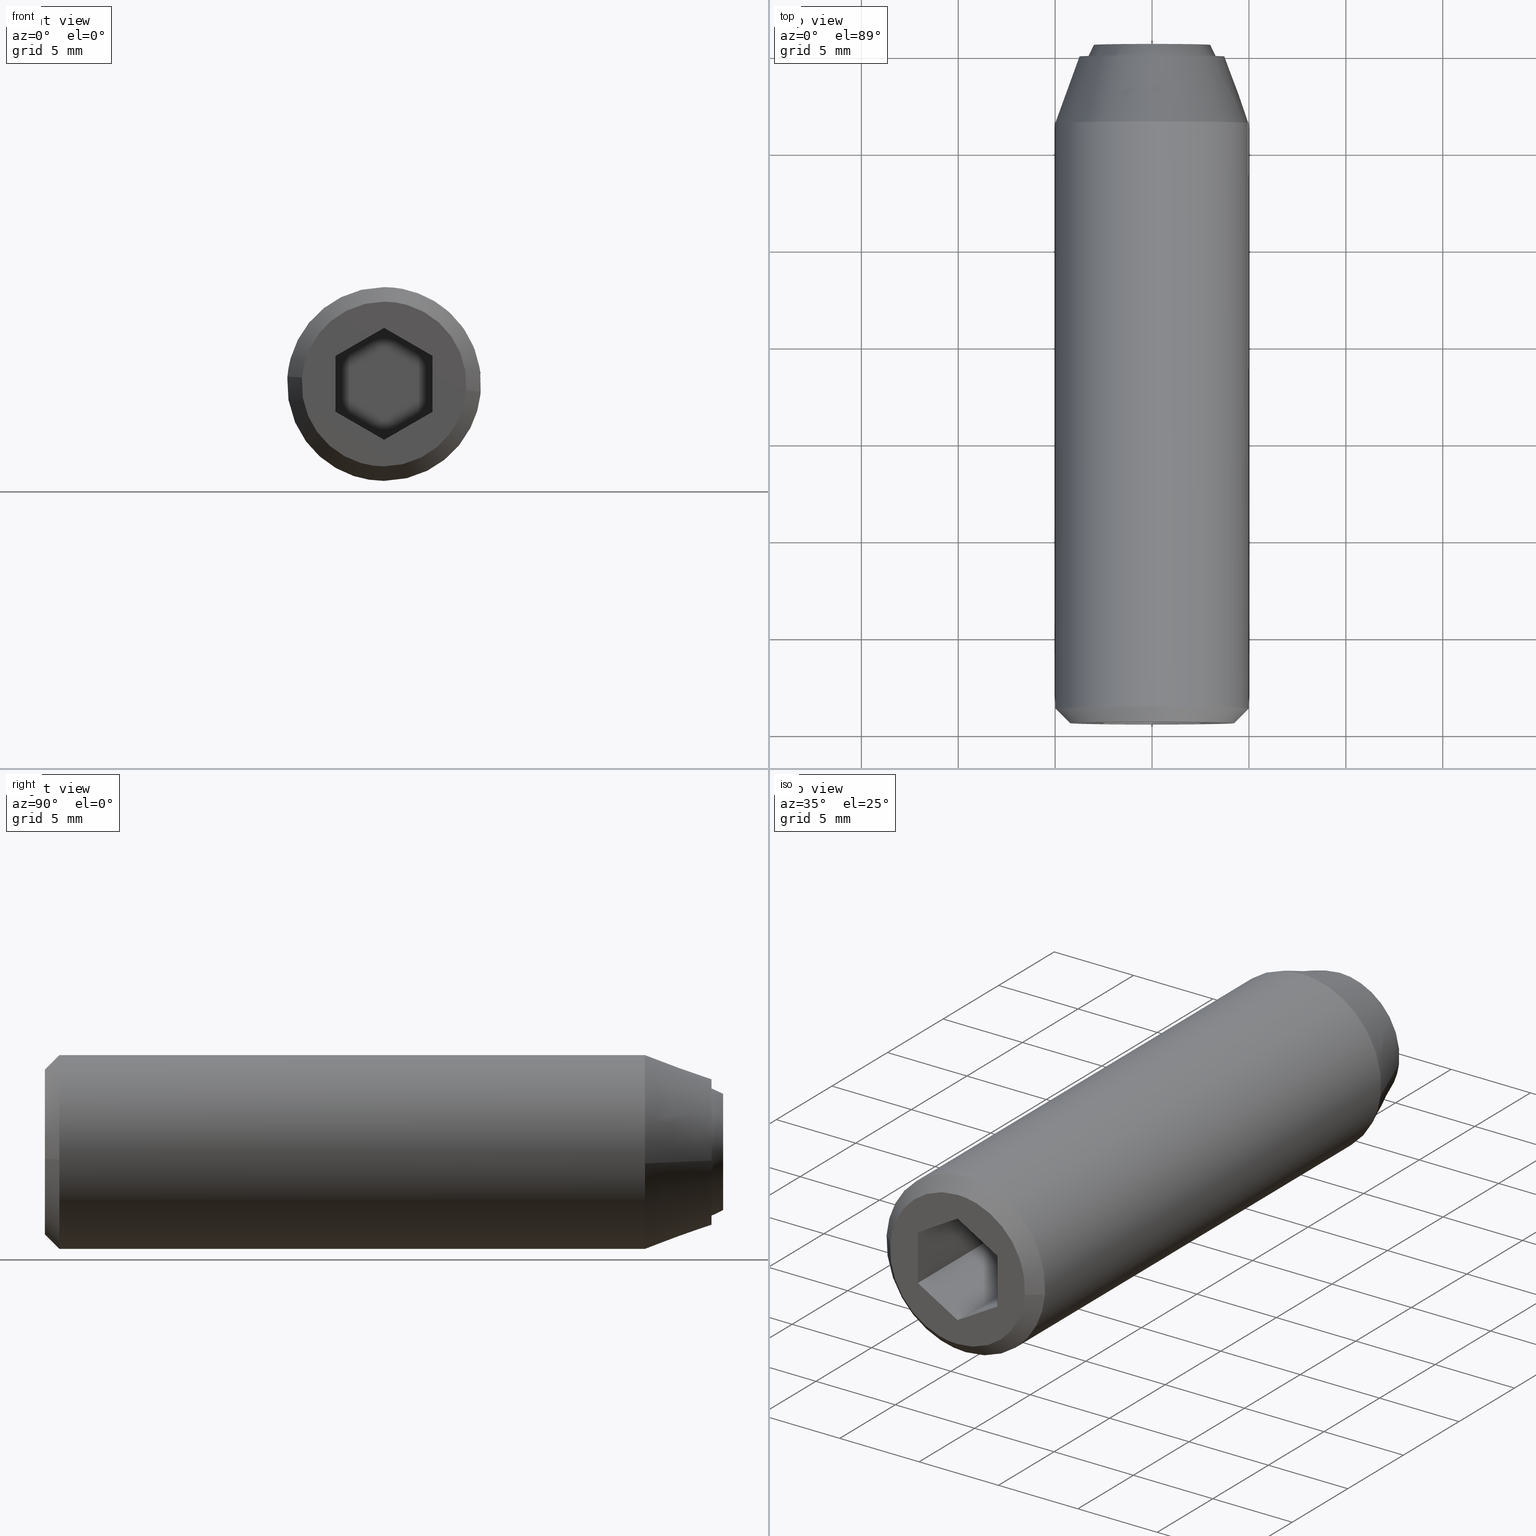
[diagram: canonical four-view strip — front | top / right | iso, engineering-drawing reading convention]
A machine part, canonical four-view strip (front | top / right | iso — engineering-drawing reading convention). The complete STEP part file that produces these views, byte-faithful:
ISO-10303-21;
HEADER;
/****************************************************************
 * Generated by software with PDE/Lib inside                    *
 * PDElib Version 4.4.1-0003, patched  Thursday August 19 11:58 *
 * International Technegroup Inc. (www.iti-oh.com)              *
 ****************************************************************/
FILE_DESCRIPTION((''),'2;1');
FILE_NAME('','2005-07-15T11:34:11',(''),(''),'','CADfix','');
FILE_SCHEMA(('AUTOMOTIVE_DESIGN'));
ENDSEC;
DATA;
#5=APPLICATION_CONTEXT('automotive design');
#6=APPLICATION_PROTOCOL_DEFINITION('Draft International Standard','automotive_design',1998,#5);
#7=PRODUCT_CONTEXT('None',#5,'mechanical');
#8=PRODUCT('body','','None',(#7));
#9=PRODUCT_RELATED_PRODUCT_CATEGORY('part','description',(#8));
#10=PRODUCT_DEFINITION_FORMATION('None','None',#8);
#11=PRODUCT_DEFINITION_CONTEXT('part definition',#5,'design');
#12=PRODUCT_DEFINITION('None','None',#10,#11);
#18=(NAMED_UNIT(*)PLANE_ANGLE_UNIT()SI_UNIT($,.RADIAN.));
#19=DIMENSIONAL_EXPONENTS(0.0,0.0,0.0,0.0,0.0,0.0,0.0);
#20=PLANE_ANGLE_MEASURE_WITH_UNIT(PLANE_ANGLE_MEASURE(0.017453292500000),#18);
#24=(CONVERSION_BASED_UNIT('DEGREE',#20)NAMED_UNIT(#19)PLANE_ANGLE_UNIT());
#28=(NAMED_UNIT(*)SI_UNIT($,.STERADIAN.)SOLID_ANGLE_UNIT());
#32=(LENGTH_UNIT()NAMED_UNIT(*)SI_UNIT(.MILLI.,.METRE.));
#34=UNCERTAINTY_MEASURE_WITH_UNIT(LENGTH_MEASURE(0.001000000000000),#32,'DISTANCE_ACCURACY_VALUE','');
#36=(GEOMETRIC_REPRESENTATION_CONTEXT(3)GLOBAL_UNCERTAINTY_ASSIGNED_CONTEXT((#34))GLOBAL_UNIT_ASSIGNED_CONTEXT((#24,#28,#32))REPRESENTATION_CONTEXT('None','None'));
#37=AXIS2_PLACEMENT_3D('',#38,#39,#40);
#38=CARTESIAN_POINT('',(0.0,0.0,0.0));
#39=DIRECTION('',(0.0,0.0,1.0));
#40=DIRECTION('',(1.0,0.0,0.0));
#41=ADVANCED_BREP_SHAPE_REPRESENTATION('',(#37,#945,#1117),#36);
#42=PRODUCT_DEFINITION_SHAPE('','',#12);
#43=SHAPE_DEFINITION_REPRESENTATION(#42,#41);
#44=CARTESIAN_POINT('',(-3.475533342272832,0.125000000000000,0.413119821298655));
#45=CARTESIAN_POINT('',(-3.487356654070120,0.125000000000000,0.313651550232922));
#46=CARTESIAN_POINT('',(-3.493471794476533,0.125000000000000,0.213669888371999));
#47=CARTESIAN_POINT('',(-3.707141682848533,0.125000000000000,-3.279801906104533));
#48=CARTESIAN_POINT('',(-0.213669888371999,0.125000000000000,-3.493471794476533));
#49=CARTESIAN_POINT('',(3.279801906104533,0.125000000000000,-3.707141682848533));
#50=CARTESIAN_POINT('',(3.493471794476533,0.125000000000000,-0.213669888371999));
#51=CARTESIAN_POINT('',(-3.475533342272832,-5.128125000000002,0.413119821298655));
#52=CARTESIAN_POINT('',(-3.487356654070120,-5.128125000000001,0.313651550232922));
#53=CARTESIAN_POINT('',(-3.493471794476533,-5.128125000000001,0.213669888371999));
#54=CARTESIAN_POINT('',(-3.707141682848533,-5.128125000000001,-3.279801906104533));
#55=CARTESIAN_POINT('',(-0.213669888371999,-5.128125000000001,-3.493471794476533));
#56=CARTESIAN_POINT('',(3.279801906104533,-5.128125000000001,-3.707141682848533));
#57=CARTESIAN_POINT('',(3.493471794476533,-5.128125000000001,-0.213669888371999));
#65=(BOUNDED_SURFACE()B_SPLINE_SURFACE(2,1,((#44,#51),(#45,#52),(#46,#53),(#47,#54),(#48,#55),(#49,#56),(#50,#57)),.UNSPECIFIED.,.F.,.F.,.U.)B_SPLINE_SURFACE_WITH_KNOTS((3,2,2,3),(2,2),(0.0,0.231959594928934,6.030949468152262,11.829939341375590),(0.0,5.253125000000002),.UNSPECIFIED.)GEOMETRIC_REPRESENTATION_ITEM()RATIONAL_B_SPLINE_SURFACE(((0.977505800795127,0.977505800795127),(0.988284271247462,0.988284271247462),(1.0,1.0),(0.707106781186548,0.707106781186548),(1.0,1.0),(0.707106781186548,0.707106781186548),(1.0,1.0)))REPRESENTATION_ITEM('')SURFACE());
#66=CARTESIAN_POINT('',(-3.475533342270658,-5.0,0.413119821316946));
#67=VERTEX_POINT('',#66);
#68=CARTESIAN_POINT('',(0.0,-5.0,-3.500000000000000));
#69=VERTEX_POINT('',#68);
#70=CARTESIAN_POINT('',(-3.475533342270658,-5.0,0.413119821316946));
#71=CARTESIAN_POINT('',(-3.500000000000000,-5.0,0.207284418800170));
#72=CARTESIAN_POINT('',(-3.500000000000000,-5.0,0.0));
#73=CARTESIAN_POINT('',(-3.500000000000000,-4.999999999999999,-3.500000000000000));
#74=CARTESIAN_POINT('',(0.0,-5.0,-3.500000000000000));
#82=(BOUNDED_CURVE()B_SPLINE_CURVE(2,(#70,#71,#72,#73,#74),.UNSPECIFIED.,.F.,.U.)B_SPLINE_CURVE_WITH_KNOTS((3,2,3),(0.229562473513865,0.250000000000000,0.500000000000000),.UNSPECIFIED.)CURVE()GEOMETRIC_REPRESENTATION_ITEM()RATIONAL_B_SPLINE_CURVE((0.956026754184399,0.976055948331563,1.0,0.707106781186547,1.0))REPRESENTATION_ITEM(''));
#83=EDGE_CURVE('',#67,#69,#82,.T.);
#84=ORIENTED_EDGE('',*,*,#83,.T.);
#85=CARTESIAN_POINT('',(3.493471794474528,-5.0,-0.213669888404798));
#86=VERTEX_POINT('',#85);
#87=CARTESIAN_POINT('',(0.0,-5.0,-3.500000000000000));
#88=CARTESIAN_POINT('',(3.292471234107977,-5.0,-3.500000000000001));
#89=CARTESIAN_POINT('',(3.493471794474527,-5.000000000000001,-0.213669888404798));
#97=(BOUNDED_CURVE()B_SPLINE_CURVE(2,(#87,#88,#89),.UNSPECIFIED.,.F.,.U.)B_SPLINE_CURVE_WITH_KNOTS((3,3),(0.500000000000000,0.739332962238727),.UNSPECIFIED.)CURVE()GEOMETRIC_REPRESENTATION_ITEM()RATIONAL_B_SPLINE_CURVE((1.0,0.719603993286962,0.976072041666256))REPRESENTATION_ITEM(''));
#98=EDGE_CURVE('',#69,#86,#97,.T.);
#99=ORIENTED_EDGE('',*,*,#98,.T.);
#100=CARTESIAN_POINT('',(3.493471794474528,1.804112E-016,-0.213669888404798));
#101=VERTEX_POINT('',#100);
#102=CARTESIAN_POINT('',(3.493471794474528,1.804112E-016,-0.213669888404798));
#103=CARTESIAN_POINT('',(3.493471794474528,-5.0,-0.213669888404798));
#104=QUASI_UNIFORM_CURVE('',1,(#102,#103),.UNSPECIFIED.,.F.,.U.);
#105=EDGE_CURVE('',#101,#86,#104,.T.);
#106=ORIENTED_EDGE('',*,*,#105,.F.);
#107=CARTESIAN_POINT('',(0.0,0.0,-3.500000000000000));
#108=VERTEX_POINT('',#107);
#109=CARTESIAN_POINT('',(0.0,0.0,-3.500000000000000));
#110=CARTESIAN_POINT('',(3.292471234107977,0.0,-3.500000000000001));
#111=CARTESIAN_POINT('',(3.493471794474527,1.804112E-016,-0.213669888404798));
#119=(BOUNDED_CURVE()B_SPLINE_CURVE(2,(#109,#110,#111),.UNSPECIFIED.,.F.,.U.)B_SPLINE_CURVE_WITH_KNOTS((3,3),(0.500000000000000,0.739332962238727),.UNSPECIFIED.)CURVE()GEOMETRIC_REPRESENTATION_ITEM()RATIONAL_B_SPLINE_CURVE((1.0,0.719603993286962,0.976072041666256))REPRESENTATION_ITEM(''));
#120=EDGE_CURVE('',#108,#101,#119,.T.);
#121=ORIENTED_EDGE('',*,*,#120,.F.);
#122=CARTESIAN_POINT('',(-3.475533342270658,1.774643E-016,0.413119821316946));
#123=VERTEX_POINT('',#122);
#124=CARTESIAN_POINT('',(-3.475533342270658,1.774643E-016,0.413119821316946));
#125=CARTESIAN_POINT('',(-3.500000000000000,0.0,0.207284418800170));
#126=CARTESIAN_POINT('',(-3.500000000000000,0.0,0.0));
#127=CARTESIAN_POINT('',(-3.500000000000000,0.0,-3.500000000000000));
#128=CARTESIAN_POINT('',(0.0,0.0,-3.500000000000000));
#136=(BOUNDED_CURVE()B_SPLINE_CURVE(2,(#124,#125,#126,#127,#128),.UNSPECIFIED.,.F.,.U.)B_SPLINE_CURVE_WITH_KNOTS((3,2,3),(0.229562473513865,0.250000000000000,0.500000000000000),.UNSPECIFIED.)CURVE()GEOMETRIC_REPRESENTATION_ITEM()RATIONAL_B_SPLINE_CURVE((0.956026754184399,0.976055948331563,1.0,0.707106781186547,1.0))REPRESENTATION_ITEM(''));
#137=EDGE_CURVE('',#123,#108,#136,.T.);
#138=ORIENTED_EDGE('',*,*,#137,.F.);
#139=CARTESIAN_POINT('',(-3.475533342270658,1.774643E-016,0.413119821316946));
#140=CARTESIAN_POINT('',(-3.475533342270658,-5.0,0.413119821316946));
#141=QUASI_UNIFORM_CURVE('',1,(#139,#140),.UNSPECIFIED.,.F.,.U.);
#142=EDGE_CURVE('',#123,#67,#141,.T.);
#143=ORIENTED_EDGE('',*,*,#142,.T.);
#144=EDGE_LOOP('',(#84,#99,#106,#121,#138,#143));
#145=FACE_OUTER_BOUND('',#144,.T.);
#146=ADVANCED_FACE('',(#145),#65,.F.);
#147=CARTESIAN_POINT('',(3.493471794476533,0.125000000000000,-0.213669888371999));
#148=CARTESIAN_POINT('',(3.707141682848533,0.125000000000000,3.279801906104533));
#149=CARTESIAN_POINT('',(0.213669888371999,0.125000000000000,3.493471794476533));
#150=CARTESIAN_POINT('',(-3.085402217938253,0.125000000000000,3.695251688563845));
#151=CARTESIAN_POINT('',(-3.475533342272832,0.125000000000000,0.413119821298655));
#152=CARTESIAN_POINT('',(3.493471794476533,-5.128125000000001,-0.213669888371999));
#153=CARTESIAN_POINT('',(3.707141682848533,-5.128125000000001,3.279801906104533));
#154=CARTESIAN_POINT('',(0.213669888371999,-5.128125000000001,3.493471794476533));
#155=CARTESIAN_POINT('',(-3.085402217938253,-5.128125000000000,3.695251688563845));
#156=CARTESIAN_POINT('',(-3.475533342272832,-5.128125000000002,0.413119821298655));
#164=(BOUNDED_SURFACE()B_SPLINE_SURFACE(2,1,((#147,#152),(#148,#153),(#149,#154),(#150,#155),(#151,#156)),.UNSPECIFIED.,.F.,.F.,.U.)B_SPLINE_SURFACE_WITH_KNOTS((3,2,3),(2,2),(0.0,5.798989873223329,11.366020151517720),(0.0,5.253125000000002),.UNSPECIFIED.)GEOMETRIC_REPRESENTATION_ITEM()RATIONAL_B_SPLINE_SURFACE(((1.0,1.0),(0.707106781186548,0.707106781186548),(1.0,1.0),(0.718822509939086,0.718822509939086),(0.977505800795127,0.977505800795127)))REPRESENTATION_ITEM('')SURFACE());
#165=CARTESIAN_POINT('',(0.0,-5.0,3.500000000000000));
#166=VERTEX_POINT('',#165);
#167=CARTESIAN_POINT('',(0.0,-5.0,3.500000000000000));
#168=CARTESIAN_POINT('',(-3.108610840796834,-4.999999999999999,3.500000000000000));
#169=CARTESIAN_POINT('',(-3.475533342270658,-5.0,0.413119821316946));
#177=(BOUNDED_CURVE()B_SPLINE_CURVE(2,(#167,#168,#169),.UNSPECIFIED.,.F.,.U.)B_SPLINE_CURVE_WITH_KNOTS((3,3),(0.0,0.229562473513865),.UNSPECIFIED.)CURVE()GEOMETRIC_REPRESENTATION_ITEM()RATIONAL_B_SPLINE_CURVE((1.0,0.731050832854984,0.956026754184399))REPRESENTATION_ITEM(''));
#178=EDGE_CURVE('',#166,#67,#177,.T.);
#179=ORIENTED_EDGE('',*,*,#178,.T.);
#180=ORIENTED_EDGE('',*,*,#142,.F.);
#181=CARTESIAN_POINT('',(0.0,0.0,3.500000000000000));
#182=VERTEX_POINT('',#181);
#183=CARTESIAN_POINT('',(0.0,0.0,3.500000000000000));
#184=CARTESIAN_POINT('',(-3.108610840796834,0.0,3.500000000000000));
#185=CARTESIAN_POINT('',(-3.475533342270658,1.774643E-016,0.413119821316946));
#193=(BOUNDED_CURVE()B_SPLINE_CURVE(2,(#183,#184,#185),.UNSPECIFIED.,.F.,.U.)B_SPLINE_CURVE_WITH_KNOTS((3,3),(0.0,0.229562473513865),.UNSPECIFIED.)CURVE()GEOMETRIC_REPRESENTATION_ITEM()RATIONAL_B_SPLINE_CURVE((1.0,0.731050832854984,0.956026754184399))REPRESENTATION_ITEM(''));
#194=EDGE_CURVE('',#182,#123,#193,.T.);
#195=ORIENTED_EDGE('',*,*,#194,.F.);
#196=CARTESIAN_POINT('',(3.493471794474528,1.804112E-016,-0.213669888404798));
#197=CARTESIAN_POINT('',(3.500000000000000,0.0,-0.106934671577952));
#198=CARTESIAN_POINT('',(3.500000000000000,0.0,0.0));
#199=CARTESIAN_POINT('',(3.500000000000000,0.0,3.500000000000000));
#200=CARTESIAN_POINT('',(0.0,0.0,3.500000000000000));
#208=(BOUNDED_CURVE()B_SPLINE_CURVE(2,(#196,#197,#198,#199,#200),.UNSPECIFIED.,.F.,.U.)B_SPLINE_CURVE_WITH_KNOTS((3,2,3),(0.739332962238728,0.750000000000000,1.0),.UNSPECIFIED.)CURVE()GEOMETRIC_REPRESENTATION_ITEM()RATIONAL_B_SPLINE_CURVE((0.976072041666258,0.987502787899586,1.0,0.707106781186547,1.0))REPRESENTATION_ITEM(''));
#209=EDGE_CURVE('',#101,#182,#208,.T.);
#210=ORIENTED_EDGE('',*,*,#209,.F.);
#211=ORIENTED_EDGE('',*,*,#105,.T.);
#212=CARTESIAN_POINT('',(3.493471794474528,-5.000000000000001,-0.213669888404798));
#213=CARTESIAN_POINT('',(3.500000000000000,-5.0,-0.106934671577952));
#214=CARTESIAN_POINT('',(3.500000000000000,-5.0,0.0));
#215=CARTESIAN_POINT('',(3.500000000000000,-4.999999999999999,3.500000000000000));
#216=CARTESIAN_POINT('',(0.0,-5.0,3.500000000000000));
#224=(BOUNDED_CURVE()B_SPLINE_CURVE(2,(#212,#213,#214,#215,#216),.UNSPECIFIED.,.F.,.U.)B_SPLINE_CURVE_WITH_KNOTS((3,2,3),(0.739332962238728,0.750000000000000,1.0),.UNSPECIFIED.)CURVE()GEOMETRIC_REPRESENTATION_ITEM()RATIONAL_B_SPLINE_CURVE((0.976072041666258,0.987502787899586,1.0,0.707106781186547,1.0))REPRESENTATION_ITEM(''));
#225=EDGE_CURVE('',#86,#166,#224,.T.);
#226=ORIENTED_EDGE('',*,*,#225,.T.);
#227=EDGE_LOOP('',(#179,#180,#195,#210,#211,#226));
#228=FACE_OUTER_BOUND('',#227,.T.);
#229=ADVANCED_FACE('',(#228),#164,.F.);
#230=CARTESIAN_POINT('',(4.218206468358289,-34.418750000000003,-0.331980048798447));
#231=CARTESIAN_POINT('',(3.886226419559843,-34.418750000000010,-4.550186517156736));
#232=CARTESIAN_POINT('',(-0.331980048798446,-34.418750000000003,-4.218206468358289));
#233=CARTESIAN_POINT('',(-4.550186517156734,-34.418750000000010,-3.886226419559844));
#234=CARTESIAN_POINT('',(-4.218206468358289,-34.418750000000003,0.331980048798445));
#235=CARTESIAN_POINT('',(5.003746173673325,-33.630781249999991,-0.393803364385248));
#236=CARTESIAN_POINT('',(4.609942809288078,-33.630781249999991,-5.397549538058574));
#237=CARTESIAN_POINT('',(-0.393803364385248,-33.630781249999991,-5.003746173673326));
#238=CARTESIAN_POINT('',(-5.397549538058573,-33.630781249999991,-4.609942809288079));
#239=CARTESIAN_POINT('',(-5.003746173673325,-33.630781249999991,0.393803364385247));
#247=(BOUNDED_SURFACE()B_SPLINE_SURFACE(2,1,((#230,#235),(#231,#236),(#232,#237),(#233,#238),(#234,#239)),.UNSPECIFIED.,.F.,.F.,.U.)B_SPLINE_SURFACE_WITH_KNOTS((3,2,3),(2,2),(0.0,8.316113915069337,16.632227830138682),(0.0,1.0),.UNSPECIFIED.)GEOMETRIC_REPRESENTATION_ITEM()RATIONAL_B_SPLINE_SURFACE(((1.0,1.0),(0.707106781186548,0.707106781186548),(1.0,1.0),(0.707106781186548,0.707106781186548),(1.0,1.0)))REPRESENTATION_ITEM('')SURFACE());
#248=CARTESIAN_POINT('',(0.0,-33.649999999999999,-5.000000000000001));
#249=VERTEX_POINT('',#248);
#250=CARTESIAN_POINT('',(4.984586668667491,-33.649999999995323,-0.392295478675378));
#251=VERTEX_POINT('',#250);
#252=CARTESIAN_POINT('',(0.0,-33.649999999999999,-5.000000000000001));
#253=CARTESIAN_POINT('',(4.621952458224471,-33.649999999999999,-5.000000000000001));
#254=CARTESIAN_POINT('',(4.984586668667491,-33.649999999995316,-0.392295478675378));
#262=(BOUNDED_CURVE()B_SPLINE_CURVE(2,(#252,#253,#254),.UNSPECIFIED.,.F.,.U.)B_SPLINE_CURVE_WITH_KNOTS((3,3),(0.0,0.236331300630306),.UNSPECIFIED.)CURVE()GEOMETRIC_REPRESENTATION_ITEM()RATIONAL_B_SPLINE_CURVE((1.0,0.723120658608080,0.969723356166679))REPRESENTATION_ITEM(''));
#263=EDGE_CURVE('',#249,#251,#262,.T.);
#264=ORIENTED_EDGE('',*,*,#263,.T.);
#265=CARTESIAN_POINT('',(4.236898668370802,-34.399999999987429,-0.333451156939885));
#266=VERTEX_POINT('',#265);
#267=CARTESIAN_POINT('',(4.236898668370802,-34.399999999987429,-0.333451156939885));
#268=CARTESIAN_POINT('',(4.984586668667491,-33.649999999995323,-0.392295478675378));
#269=QUASI_UNIFORM_CURVE('',1,(#267,#268),.UNSPECIFIED.,.F.,.U.);
#270=EDGE_CURVE('',#266,#251,#269,.T.);
#271=ORIENTED_EDGE('',*,*,#270,.F.);
#272=CARTESIAN_POINT('',(0.0,-34.399999999999999,-4.250000000000001));
#273=VERTEX_POINT('',#272);
#274=CARTESIAN_POINT('',(0.0,-34.399999999999999,-4.250000000000001));
#275=CARTESIAN_POINT('',(3.928659589369624,-34.400000000000006,-4.250000000000002));
#276=CARTESIAN_POINT('',(4.236898668370802,-34.399999999987436,-0.333451156939885));
#284=(BOUNDED_CURVE()B_SPLINE_CURVE(2,(#274,#275,#276),.UNSPECIFIED.,.F.,.U.)B_SPLINE_CURVE_WITH_KNOTS((3,3),(0.0,0.236331300625034),.UNSPECIFIED.)CURVE()GEOMETRIC_REPRESENTATION_ITEM()RATIONAL_B_SPLINE_CURVE((1.0,0.723120658614256,0.969723356155679))REPRESENTATION_ITEM(''));
#285=EDGE_CURVE('',#273,#266,#284,.T.);
#286=ORIENTED_EDGE('',*,*,#285,.F.);
#287=CARTESIAN_POINT('',(-4.236898668370805,-34.399999999987429,0.333451156939884));
#288=VERTEX_POINT('',#287);
#289=CARTESIAN_POINT('',(-4.236898668370805,-34.399999999987429,0.333451156939884));
#290=CARTESIAN_POINT('',(-4.249999999999999,-34.400000000000006,0.166982954878595));
#291=CARTESIAN_POINT('',(-4.250000000000000,-34.399999999999999,-7.898711E-016));
#292=CARTESIAN_POINT('',(-4.249999999999999,-34.400000000000006,-4.250000000000002));
#293=CARTESIAN_POINT('',(0.0,-34.399999999999999,-4.250000000000001));
#301=(BOUNDED_CURVE()B_SPLINE_CURVE(2,(#289,#290,#291,#292,#293),.UNSPECIFIED.,.F.,.U.)B_SPLINE_CURVE_WITH_KNOTS((3,2,3),(0.736331300625034,0.750000000000000,1.0),.UNSPECIFIED.)CURVE()GEOMETRIC_REPRESENTATION_ITEM()RATIONAL_B_SPLINE_CURVE((0.969723356155679,0.983986122572292,1.0,0.707106781186548,1.0))REPRESENTATION_ITEM(''));
#302=EDGE_CURVE('',#288,#273,#301,.T.);
#303=ORIENTED_EDGE('',*,*,#302,.F.);
#304=CARTESIAN_POINT('',(-4.984586668667435,-33.649999999995508,0.392295478673589));
#305=VERTEX_POINT('',#304);
#306=CARTESIAN_POINT('',(-4.236898668370805,-34.399999999987429,0.333451156939884));
#307=CARTESIAN_POINT('',(-4.984586668667435,-33.649999999995508,0.392295478673589));
#308=QUASI_UNIFORM_CURVE('',1,(#306,#307),.UNSPECIFIED.,.F.,.U.);
#309=EDGE_CURVE('',#288,#305,#308,.T.);
#310=ORIENTED_EDGE('',*,*,#309,.T.);
#311=CARTESIAN_POINT('',(-4.990673992107780,-33.649999999999999,0.305242697699694));
#312=VERTEX_POINT('',#311);
#313=CARTESIAN_POINT('',(-4.984586668667435,-33.649999999995515,0.392295478673589));
#314=CARTESIAN_POINT('',(-4.988010179438556,-33.649999999999999,0.348795649849651));
#315=CARTESIAN_POINT('',(-4.990673992107780,-33.649999999999991,0.305242697699694));
#323=(BOUNDED_CURVE()B_SPLINE_CURVE(2,(#313,#314,#315),.UNSPECIFIED.,.F.,.U.)B_SPLINE_CURVE_WITH_KNOTS((3,3),(0.736331300630428,0.739332962240210),.UNSPECIFIED.)CURVE()GEOMETRIC_REPRESENTATION_ITEM()RATIONAL_B_SPLINE_CURVE((0.969723356166933,0.972855475561009,0.976072041669434))REPRESENTATION_ITEM(''));
#324=EDGE_CURVE('',#305,#312,#323,.T.);
#325=ORIENTED_EDGE('',*,*,#324,.T.);
#326=CARTESIAN_POINT('',(-4.990673992107780,-33.650000000000006,0.305242697699694));
#327=CARTESIAN_POINT('',(-5.000000000000001,-33.649999999999999,0.152763816518425));
#328=CARTESIAN_POINT('',(-5.0,-33.649999999999999,-7.898711E-016));
#329=CARTESIAN_POINT('',(-5.000000000000001,-33.650000000000006,-5.000000000000002));
#330=CARTESIAN_POINT('',(0.0,-33.649999999999999,-5.000000000000001));
#338=(BOUNDED_CURVE()B_SPLINE_CURVE(2,(#326,#327,#328,#329,#330),.UNSPECIFIED.,.F.,.U.)B_SPLINE_CURVE_WITH_KNOTS((3,2,3),(0.739332962240211,0.750000000000000,1.0),.UNSPECIFIED.)CURVE()GEOMETRIC_REPRESENTATION_ITEM()RATIONAL_B_SPLINE_CURVE((0.976072041669436,0.987502787901323,1.0,0.707106781186548,1.0))REPRESENTATION_ITEM(''));
#339=EDGE_CURVE('',#312,#249,#338,.T.);
#340=ORIENTED_EDGE('',*,*,#339,.T.);
#341=EDGE_LOOP('',(#264,#271,#286,#303,#310,#325,#340));
#342=FACE_OUTER_BOUND('',#341,.T.);
#343=ADVANCED_FACE('',(#342),#247,.T.);
#344=CARTESIAN_POINT('',(-4.218206468358289,-34.418750000000003,0.331980048798445));
#345=CARTESIAN_POINT('',(-3.886226419559843,-34.418750000000010,4.550186517156733));
#346=CARTESIAN_POINT('',(0.331980048798446,-34.418750000000003,4.218206468358288));
#347=CARTESIAN_POINT('',(4.550186517156734,-34.418750000000010,3.886226419559842));
#348=CARTESIAN_POINT('',(4.218206468358289,-34.418750000000003,-0.331980048798447));
#349=CARTESIAN_POINT('',(-5.003746173673325,-33.630781249999991,0.393803364385247));
#350=CARTESIAN_POINT('',(-4.609942809288078,-33.630781249999991,5.397549538058571));
#351=CARTESIAN_POINT('',(0.393803364385248,-33.630781249999991,5.003746173673324));
#352=CARTESIAN_POINT('',(5.397549538058573,-33.630781249999991,4.609942809288076));
#353=CARTESIAN_POINT('',(5.003746173673325,-33.630781249999991,-0.393803364385248));
#361=(BOUNDED_SURFACE()B_SPLINE_SURFACE(2,1,((#344,#349),(#345,#350),(#346,#351),(#347,#352),(#348,#353)),.UNSPECIFIED.,.F.,.F.,.U.)B_SPLINE_SURFACE_WITH_KNOTS((3,2,3),(2,2),(0.0,8.316113915069337,16.632227830138682),(0.0,1.0),.UNSPECIFIED.)GEOMETRIC_REPRESENTATION_ITEM()RATIONAL_B_SPLINE_SURFACE(((1.0,1.0),(0.707106781186548,0.707106781186548),(1.0,1.0),(0.707106781186548,0.707106781186548),(1.0,1.0)))REPRESENTATION_ITEM('')SURFACE());
#362=CARTESIAN_POINT('',(1.758086609779861,-33.649999999999991,4.680719119163272));
#363=VERTEX_POINT('',#362);
#364=CARTESIAN_POINT('',(4.984586668667491,-33.649999999995316,-0.392295478675378));
#365=CARTESIAN_POINT('',(4.999999999999999,-33.649999999999999,-0.196450535074298));
#366=CARTESIAN_POINT('',(5.0,-33.649999999999999,-7.898711E-016));
#367=CARTESIAN_POINT('',(5.0,-33.649999999999999,3.463050556640162));
#368=CARTESIAN_POINT('',(1.758086609779862,-33.649999999999991,4.680719119163272));
#376=(BOUNDED_CURVE()B_SPLINE_CURVE(2,(#364,#365,#366,#367,#368),.UNSPECIFIED.,.F.,.U.)B_SPLINE_CURVE_WITH_KNOTS((3,2,3),(0.236331300630306,0.250000000000000,0.440284280980439),.UNSPECIFIED.)CURVE()GEOMETRIC_REPRESENTATION_ITEM()RATIONAL_B_SPLINE_CURVE((0.969723356166679,0.983986122578467,1.0,0.777068097816143,0.893499689349541))REPRESENTATION_ITEM(''));
#377=EDGE_CURVE('',#251,#363,#376,.T.);
#378=ORIENTED_EDGE('',*,*,#377,.T.);
#379=CARTESIAN_POINT('',(0.0,-33.649999999999999,4.999999999999999));
#380=VERTEX_POINT('',#379);
#381=CARTESIAN_POINT('',(1.758086609779862,-33.649999999999991,4.680719119163272));
#382=CARTESIAN_POINT('',(0.908035130520365,-33.650000000000006,4.999999999999999));
#383=CARTESIAN_POINT('',(0.0,-33.649999999999999,4.999999999999999));
#391=(BOUNDED_CURVE()B_SPLINE_CURVE(2,(#381,#382,#383),.UNSPECIFIED.,.F.,.U.)B_SPLINE_CURVE_WITH_KNOTS((3,3),(0.440284280980439,0.500000000000000),.UNSPECIFIED.)CURVE()GEOMETRIC_REPRESENTATION_ITEM()RATIONAL_B_SPLINE_CURVE((0.893499689349541,0.930038683370405,1.0))REPRESENTATION_ITEM(''));
#392=EDGE_CURVE('',#363,#380,#391,.T.);
#393=ORIENTED_EDGE('',*,*,#392,.T.);
#394=CARTESIAN_POINT('',(0.0,-33.649999999999999,4.999999999999999));
#395=CARTESIAN_POINT('',(-4.621952458227778,-33.649999999999999,5.0));
#396=CARTESIAN_POINT('',(-4.984586668667435,-33.649999999995508,0.392295478673589));
#404=(BOUNDED_CURVE()B_SPLINE_CURVE(2,(#394,#395,#396),.UNSPECIFIED.,.F.,.U.)B_SPLINE_CURVE_WITH_KNOTS((3,3),(0.500000000000000,0.736331300630428),.UNSPECIFIED.)CURVE()GEOMETRIC_REPRESENTATION_ITEM()RATIONAL_B_SPLINE_CURVE((1.0,0.723120658607937,0.969723356166934))REPRESENTATION_ITEM(''));
#405=EDGE_CURVE('',#380,#305,#404,.T.);
#406=ORIENTED_EDGE('',*,*,#405,.T.);
#407=ORIENTED_EDGE('',*,*,#309,.F.);
#408=CARTESIAN_POINT('',(0.0,-34.399999999999999,4.249999999999999));
#409=VERTEX_POINT('',#408);
#410=CARTESIAN_POINT('',(0.0,-34.399999999999999,4.249999999999999));
#411=CARTESIAN_POINT('',(-3.928659589369623,-34.399999999999999,4.249999999999999));
#412=CARTESIAN_POINT('',(-4.236898668370805,-34.399999999987429,0.333451156939884));
#420=(BOUNDED_CURVE()B_SPLINE_CURVE(2,(#410,#411,#412),.UNSPECIFIED.,.F.,.U.)B_SPLINE_CURVE_WITH_KNOTS((3,3),(0.500000000000000,0.736331300625034),.UNSPECIFIED.)CURVE()GEOMETRIC_REPRESENTATION_ITEM()RATIONAL_B_SPLINE_CURVE((1.0,0.723120658614256,0.969723356155679))REPRESENTATION_ITEM(''));
#421=EDGE_CURVE('',#409,#288,#420,.T.);
#422=ORIENTED_EDGE('',*,*,#421,.F.);
#423=CARTESIAN_POINT('',(4.236898668370802,-34.399999999987436,-0.333451156939885));
#424=CARTESIAN_POINT('',(4.250000000000000,-34.399999999999999,-0.166982954878596));
#425=CARTESIAN_POINT('',(4.250000000000000,-34.399999999999999,-7.898711E-016));
#426=CARTESIAN_POINT('',(4.249999999999999,-34.400000000000006,4.249999999999998));
#427=CARTESIAN_POINT('',(0.0,-34.399999999999999,4.249999999999999));
#435=(BOUNDED_CURVE()B_SPLINE_CURVE(2,(#423,#424,#425,#426,#427),.UNSPECIFIED.,.F.,.U.)B_SPLINE_CURVE_WITH_KNOTS((3,2,3),(0.236331300625035,0.250000000000000,0.500000000000000),.UNSPECIFIED.)CURVE()GEOMETRIC_REPRESENTATION_ITEM()RATIONAL_B_SPLINE_CURVE((0.969723356155679,0.983986122572292,1.0,0.707106781186548,1.0))REPRESENTATION_ITEM(''));
#436=EDGE_CURVE('',#266,#409,#435,.T.);
#437=ORIENTED_EDGE('',*,*,#436,.F.);
#438=ORIENTED_EDGE('',*,*,#270,.T.);
#439=EDGE_LOOP('',(#378,#393,#406,#407,#422,#437,#438));
#440=FACE_OUTER_BOUND('',#439,.T.);
#441=ADVANCED_FACE('',(#440),#361,.T.);
#442=CARTESIAN_POINT('',(1.758089871957861,-2.678955674999998,4.680717893883286));
#443=CARTESIAN_POINT('',(1.054947258577041,-2.678955674999998,4.944820096825753));
#444=CARTESIAN_POINT('',(0.305242697674285,-2.678955674999998,4.990673992109333));
#445=CARTESIAN_POINT('',(-4.685431294435048,-2.678955674999999,5.295916689783618));
#446=CARTESIAN_POINT('',(-4.990673992109334,-2.678955674999998,0.305242697674284));
#447=CARTESIAN_POINT('',(1.758089871957861,-34.424276108124999,4.680717893883286));
#448=CARTESIAN_POINT('',(1.054947258577041,-34.424276108124999,4.944820096825753));
#449=CARTESIAN_POINT('',(0.305242697674285,-34.424276108124999,4.990673992109333));
#450=CARTESIAN_POINT('',(-4.685431294435048,-34.424276108124999,5.295916689783618));
#451=CARTESIAN_POINT('',(-4.990673992109334,-34.424276108124999,0.305242697674284));
#459=(BOUNDED_SURFACE()B_SPLINE_SURFACE(2,1,((#442,#447),(#443,#448),(#444,#449),(#445,#450),(#446,#451)),.UNSPECIFIED.,.F.,.F.,.U.)B_SPLINE_SURFACE_WITH_KNOTS((3,2,3),(2,2),(0.0,1.656854249492380,9.941125496954278),(0.0,31.745320433125009),.UNSPECIFIED.)GEOMETRIC_REPRESENTATION_ITEM()RATIONAL_B_SPLINE_SURFACE(((0.906274169979695,0.906274169979695),(0.941421356237309,0.941421356237309),(1.0,1.0),(0.707106781186548,0.707106781186548),(1.0,1.0)))REPRESENTATION_ITEM('')SURFACE());
#460=CARTESIAN_POINT('',(1.758085411978979,-3.434346999999992,4.680719569058159));
#461=VERTEX_POINT('',#460);
#462=CARTESIAN_POINT('',(0.0,-3.434347000000000,4.999999999999999));
#463=VERTEX_POINT('',#462);
#464=CARTESIAN_POINT('',(1.758085411978979,-3.434346999999991,4.680719569058159));
#465=CARTESIAN_POINT('',(0.908034469668268,-3.434346999999999,4.999999999999999));
#466=CARTESIAN_POINT('',(0.0,-3.434347000000000,4.999999999999999));
#474=(BOUNDED_CURVE()B_SPLINE_CURVE(2,(#464,#465,#466),.UNSPECIFIED.,.F.,.U.)B_SPLINE_CURVE_WITH_KNOTS((3,3),(0.440284321399975,0.500000000000000),.UNSPECIFIED.)CURVE()GEOMETRIC_REPRESENTATION_ITEM()RATIONAL_B_SPLINE_CURVE((0.893499738813557,0.930038730724837,1.0))REPRESENTATION_ITEM(''));
#475=EDGE_CURVE('',#461,#463,#474,.T.);
#476=ORIENTED_EDGE('',*,*,#475,.T.);
#477=CARTESIAN_POINT('',(-4.990673992109441,-3.434347000007194,0.305242697693963));
#478=VERTEX_POINT('',#477);
#479=CARTESIAN_POINT('',(0.0,-3.434347000000000,4.999999999999999));
#480=CARTESIAN_POINT('',(-4.703530334454459,-3.434346999999999,4.999999999999998));
#481=CARTESIAN_POINT('',(-4.990673992109441,-3.434347000007195,0.305242697693963));
#489=(BOUNDED_CURVE()B_SPLINE_CURVE(2,(#479,#480,#481),.UNSPECIFIED.,.F.,.U.)B_SPLINE_CURVE_WITH_KNOTS((3,3),(0.500000000000000,0.739332962239258),.UNSPECIFIED.)CURVE()GEOMETRIC_REPRESENTATION_ITEM()RATIONAL_B_SPLINE_CURVE((1.0,0.719603993286341,0.976072041667393))REPRESENTATION_ITEM(''));
#490=EDGE_CURVE('',#463,#478,#489,.T.);
#491=ORIENTED_EDGE('',*,*,#490,.T.);
#492=CARTESIAN_POINT('',(-4.990673992109441,-3.434347000007194,0.305242697693963));
#493=CARTESIAN_POINT('',(-4.990673992107780,-33.649999999999999,0.305242697699694));
#494=QUASI_UNIFORM_CURVE('',1,(#492,#493),.UNSPECIFIED.,.F.,.U.);
#495=EDGE_CURVE('',#478,#312,#494,.T.);
#496=ORIENTED_EDGE('',*,*,#495,.T.);
#497=ORIENTED_EDGE('',*,*,#324,.F.);
#498=ORIENTED_EDGE('',*,*,#405,.F.);
#499=ORIENTED_EDGE('',*,*,#392,.F.);
#500=CARTESIAN_POINT('',(1.758085411978979,-3.434346999999992,4.680719569058159));
#501=CARTESIAN_POINT('',(1.758086609779861,-33.649999999999991,4.680719119163272));
#502=QUASI_UNIFORM_CURVE('',1,(#500,#501),.UNSPECIFIED.,.F.,.U.);
#503=EDGE_CURVE('',#461,#363,#502,.T.);
#504=ORIENTED_EDGE('',*,*,#503,.F.);
#505=EDGE_LOOP('',(#476,#491,#496,#497,#498,#499,#504));
#506=FACE_OUTER_BOUND('',#505,.T.);
#507=ADVANCED_FACE('',(#506),#459,.T.);
#508=CARTESIAN_POINT('',(-4.990673992109334,-2.678955674999998,0.305242697674284));
#509=CARTESIAN_POINT('',(-5.295916689783620,-2.678955674999999,-4.685431294435050));
#510=CARTESIAN_POINT('',(-0.305242697674285,-2.678955674999998,-4.990673992109334));
#511=CARTESIAN_POINT('',(4.685431294435048,-2.678955674999999,-5.295916689783620));
#512=CARTESIAN_POINT('',(4.990673992109334,-2.678955674999998,-0.305242697674286));
#513=CARTESIAN_POINT('',(5.216186114346709,-2.678955674999998,3.381847909015324));
#514=CARTESIAN_POINT('',(1.758089871957861,-2.678955674999998,4.680717893883286));
#515=CARTESIAN_POINT('',(-4.990673992109334,-34.424276108124999,0.305242697674284));
#516=CARTESIAN_POINT('',(-5.295916689783620,-34.424276108124999,-4.685431294435050));
#517=CARTESIAN_POINT('',(-0.305242697674285,-34.424276108124999,-4.990673992109334));
#518=CARTESIAN_POINT('',(4.685431294435048,-34.424276108124999,-5.295916689783620));
#519=CARTESIAN_POINT('',(4.990673992109334,-34.424276108124999,-0.305242697674286));
#520=CARTESIAN_POINT('',(5.216186114346709,-34.424276108125007,3.381847909015324));
#521=CARTESIAN_POINT('',(1.758089871957861,-34.424276108124999,4.680717893883286));
#529=(BOUNDED_SURFACE()B_SPLINE_SURFACE(2,1,((#508,#515),(#509,#516),(#510,#517),(#511,#518),(#512,#519),(#513,#520),(#514,#521)),.UNSPECIFIED.,.F.,.F.,.U.)B_SPLINE_SURFACE_WITH_KNOTS((3,2,2,3),(2,2),(0.0,8.284271247461899,16.568542494923800,23.195959492893319),(0.0,31.745320433125009),.UNSPECIFIED.)GEOMETRIC_REPRESENTATION_ITEM()RATIONAL_B_SPLINE_SURFACE(((1.0,1.0),(0.707106781186548,0.707106781186548),(1.0,1.0),(0.707106781186548,0.707106781186548),(1.0,1.0),(0.765685424949238,0.765685424949238),(0.906274169979695,0.906274169979695)))REPRESENTATION_ITEM('')SURFACE());
#530=CARTESIAN_POINT('',(4.965047631817228,-3.434347000004106,-0.590171173305738));
#531=VERTEX_POINT('',#530);
#532=CARTESIAN_POINT('',(4.965047631817228,-3.434347000004106,-0.590171173305738));
#533=CARTESIAN_POINT('',(5.000000000000001,-3.434347000000000,-0.296120598281550));
#534=CARTESIAN_POINT('',(5.0,-3.434347000000000,-7.898711E-016));
#535=CARTESIAN_POINT('',(5.0,-3.434347000000000,3.463051503287431));
#536=CARTESIAN_POINT('',(1.758085411978979,-3.434346999999991,4.680719569058159));
#544=(BOUNDED_CURVE()B_SPLINE_CURVE(2,(#532,#533,#534,#535,#536),.UNSPECIFIED.,.F.,.U.)B_SPLINE_CURVE_WITH_KNOTS((3,2,3),(0.229562473514162,0.250000000000000,0.440284321399975),.UNSPECIFIED.)CURVE()GEOMETRIC_REPRESENTATION_ITEM()RATIONAL_B_SPLINE_CURVE((0.956026754184981,0.976055948331911,1.0,0.777068050461711,0.893499738813557))REPRESENTATION_ITEM(''));
#545=EDGE_CURVE('',#531,#461,#544,.T.);
#546=ORIENTED_EDGE('',*,*,#545,.T.);
#547=ORIENTED_EDGE('',*,*,#503,.T.);
#548=ORIENTED_EDGE('',*,*,#377,.F.);
#549=ORIENTED_EDGE('',*,*,#263,.F.);
#550=ORIENTED_EDGE('',*,*,#339,.F.);
#551=ORIENTED_EDGE('',*,*,#495,.F.);
#552=CARTESIAN_POINT('',(0.0,-3.434347000000000,-5.000000000000001));
#553=VERTEX_POINT('',#552);
#554=CARTESIAN_POINT('',(-4.990673992109441,-3.434347000007194,0.305242697693963));
#555=CARTESIAN_POINT('',(-4.999999999999999,-3.434347000000000,0.152763816532252));
#556=CARTESIAN_POINT('',(-5.0,-3.434347000000000,-7.898711E-016));
#557=CARTESIAN_POINT('',(-5.000000000000001,-3.434347000000000,-5.000000000000002));
#558=CARTESIAN_POINT('',(0.0,-3.434347000000000,-5.000000000000001));
#566=(BOUNDED_CURVE()B_SPLINE_CURVE(2,(#554,#555,#556,#557,#558),.UNSPECIFIED.,.F.,.U.)B_SPLINE_CURVE_WITH_KNOTS((3,2,3),(0.739332962239258,0.750000000000000,1.0),.UNSPECIFIED.)CURVE()GEOMETRIC_REPRESENTATION_ITEM()RATIONAL_B_SPLINE_CURVE((0.976072041667393,0.987502787900206,1.0,0.707106781186548,1.0))REPRESENTATION_ITEM(''));
#567=EDGE_CURVE('',#478,#553,#566,.T.);
#568=ORIENTED_EDGE('',*,*,#567,.T.);
#569=CARTESIAN_POINT('',(0.0,-3.434347000000000,-5.000000000000001));
#570=CARTESIAN_POINT('',(4.440872629717623,-3.434347000000000,-5.000000000000002));
#571=CARTESIAN_POINT('',(4.965047631817228,-3.434347000004106,-0.590171173305738));
#579=(BOUNDED_CURVE()B_SPLINE_CURVE(2,(#569,#570,#571),.UNSPECIFIED.,.F.,.U.)B_SPLINE_CURVE_WITH_KNOTS((3,3),(0.0,0.229562473514162),.UNSPECIFIED.)CURVE()GEOMETRIC_REPRESENTATION_ITEM()RATIONAL_B_SPLINE_CURVE((1.0,0.731050832854636,0.956026754184981))REPRESENTATION_ITEM(''));
#580=EDGE_CURVE('',#553,#531,#579,.T.);
#581=ORIENTED_EDGE('',*,*,#580,.T.);
#582=EDGE_LOOP('',(#546,#547,#548,#549,#550,#551,#568,#581));
#583=FACE_OUTER_BOUND('',#582,.T.);
#584=ADVANCED_FACE('',(#583),#529,.T.);
#585=CARTESIAN_POINT('',(3.692754176164883,0.085858675000000,-0.438939810129821));
#586=CARTESIAN_POINT('',(3.705316444949502,0.085858675000000,-0.333254772122480));
#587=CARTESIAN_POINT('',(3.711813781631317,0.085858675000000,-0.227024256395250));
#588=CARTESIAN_POINT('',(3.938838038026567,0.085858675000000,3.484789525236066));
#589=CARTESIAN_POINT('',(0.227024256395249,0.085858675000000,3.711813781631316));
#590=CARTESIAN_POINT('',(-3.484789525236068,0.085858675000000,3.938838038026566));
#591=CARTESIAN_POINT('',(-3.711813781631317,0.085858675000000,0.227024256395249));
#592=CARTESIAN_POINT('',(4.996854968209667,-3.522352141875000,-0.593951957362642));
#593=CARTESIAN_POINT('',(5.013853618050365,-3.522352141875000,-0.450944114966574));
#594=CARTESIAN_POINT('',(5.022645497371283,-3.522352141875000,-0.307198158706261));
#595=CARTESIAN_POINT('',(5.329843656077543,-3.522352141875000,4.715447338665021));
#596=CARTESIAN_POINT('',(0.307198158706261,-3.522352141875000,5.022645497371282));
#597=CARTESIAN_POINT('',(-4.715447338665021,-3.522352141875000,5.329843656077543));
#598=CARTESIAN_POINT('',(-5.022645497371283,-3.522352141875000,0.307198158706260));
#606=(BOUNDED_SURFACE()B_SPLINE_SURFACE(2,1,((#585,#592),(#586,#593),(#587,#594),(#588,#595),(#589,#596),(#590,#597),(#591,#598)),.UNSPECIFIED.,.F.,.F.,.U.)B_SPLINE_SURFACE_WITH_KNOTS((3,2,2,3),(2,2),(0.0,0.333493694405638,8.670836054546589,17.008178414687539),(0.0,3.839777720209246),.UNSPECIFIED.)GEOMETRIC_REPRESENTATION_ITEM()RATIONAL_B_SPLINE_SURFACE(((0.977505800795127,0.977505800795127),(0.988284271247462,0.988284271247462),(1.0,1.0),(0.707106781186548,0.707106781186548),(1.0,1.0),(0.707106781186548,0.707106781186548),(1.0,1.0)))REPRESENTATION_ITEM('')SURFACE());
#607=ORIENTED_EDGE('',*,*,#545,.F.);
#608=CARTESIAN_POINT('',(3.723785723862184,-5.842315E-012,-0.442628379994026));
#609=VERTEX_POINT('',#608);
#610=CARTESIAN_POINT('',(3.723785723862184,-5.842315E-012,-0.442628379994026));
#611=CARTESIAN_POINT('',(4.965047631817228,-3.434347000004106,-0.590171173305738));
#612=QUASI_UNIFORM_CURVE('',1,(#610,#611),.UNSPECIFIED.,.F.,.U.);
#613=EDGE_CURVE('',#609,#531,#612,.T.);
#614=ORIENTED_EDGE('',*,*,#613,.F.);
#615=CARTESIAN_POINT('',(0.0,0.0,3.749999999999999));
#616=VERTEX_POINT('',#615);
#617=CARTESIAN_POINT('',(3.723785723862184,-5.842315E-012,-0.442628379994026));
#618=CARTESIAN_POINT('',(3.750000000000001,0.0,-0.222090448725920));
#619=CARTESIAN_POINT('',(3.750000000000000,0.0,-7.898711E-016));
#620=CARTESIAN_POINT('',(3.750000000000000,0.0,3.749999999999999));
#621=CARTESIAN_POINT('',(0.0,0.0,3.749999999999999));
#629=(BOUNDED_CURVE()B_SPLINE_CURVE(2,(#617,#618,#619,#620,#621),.UNSPECIFIED.,.F.,.U.)B_SPLINE_CURVE_WITH_KNOTS((3,2,3),(0.229562473512837,0.250000000000000,0.500000000000000),.UNSPECIFIED.)CURVE()GEOMETRIC_REPRESENTATION_ITEM()RATIONAL_B_SPLINE_CURVE((0.956026754182383,0.976055948330358,1.0,0.707106781186547,1.0))REPRESENTATION_ITEM(''));
#630=EDGE_CURVE('',#609,#616,#629,.T.);
#631=ORIENTED_EDGE('',*,*,#630,.T.);
#632=CARTESIAN_POINT('',(-3.743005494082282,-9.314445E-012,0.228932023306648));
#633=VERTEX_POINT('',#632);
#634=CARTESIAN_POINT('',(0.0,0.0,3.749999999999999));
#635=CARTESIAN_POINT('',(-3.527647750800547,0.0,3.749999999999998));
#636=CARTESIAN_POINT('',(-3.743005494082282,-9.314445E-012,0.228932023306648));
#644=(BOUNDED_CURVE()B_SPLINE_CURVE(2,(#634,#635,#636),.UNSPECIFIED.,.F.,.U.)B_SPLINE_CURVE_WITH_KNOTS((3,3),(0.500000000000000,0.739332962237291),.UNSPECIFIED.)CURVE()GEOMETRIC_REPRESENTATION_ITEM()RATIONAL_B_SPLINE_CURVE((1.0,0.719603993288646,0.976072041663177))REPRESENTATION_ITEM(''));
#645=EDGE_CURVE('',#616,#633,#644,.T.);
#646=ORIENTED_EDGE('',*,*,#645,.T.);
#647=CARTESIAN_POINT('',(-3.743005494082282,-9.314445E-012,0.228932023306648));
#648=CARTESIAN_POINT('',(-4.990673992109441,-3.434347000007194,0.305242697693963));
#649=QUASI_UNIFORM_CURVE('',1,(#647,#648),.UNSPECIFIED.,.F.,.U.);
#650=EDGE_CURVE('',#633,#478,#649,.T.);
#651=ORIENTED_EDGE('',*,*,#650,.T.);
#652=ORIENTED_EDGE('',*,*,#490,.F.);
#653=ORIENTED_EDGE('',*,*,#475,.F.);
#654=EDGE_LOOP('',(#607,#614,#631,#646,#651,#652,#653));
#655=FACE_OUTER_BOUND('',#654,.T.);
#656=ADVANCED_FACE('',(#655),#606,.T.);
#657=CARTESIAN_POINT('',(-3.711813781631317,0.085858675000000,0.227024256395249));
#658=CARTESIAN_POINT('',(-3.938838038026567,0.085858675000000,-3.484789525236069));
#659=CARTESIAN_POINT('',(-0.227024256395249,0.085858675000000,-3.711813781631318));
#660=CARTESIAN_POINT('',(3.278239856559394,0.085858675000000,-3.926204919099088));
#661=CARTESIAN_POINT('',(3.692754176164883,0.085858675000000,-0.438939810129821));
#662=CARTESIAN_POINT('',(-5.022645497371283,-3.522352141875000,0.307198158706260));
#663=CARTESIAN_POINT('',(-5.329843656077543,-3.522352141875000,-4.715447338665022));
#664=CARTESIAN_POINT('',(-0.307198158706261,-3.522352141875000,-5.022645497371284));
#665=CARTESIAN_POINT('',(4.435954394138456,-3.522352141875000,-5.312749135276726));
#666=CARTESIAN_POINT('',(4.996854968209667,-3.522352141875000,-0.593951957362642));
#674=(BOUNDED_SURFACE()B_SPLINE_SURFACE(2,1,((#657,#662),(#658,#663),(#659,#664),(#660,#665),(#661,#666)),.UNSPECIFIED.,.F.,.F.,.U.)B_SPLINE_SURFACE_WITH_KNOTS((3,2,3),(2,2),(0.0,8.337342360140951,16.341191025876260),(0.0,3.839777720209246),.UNSPECIFIED.)GEOMETRIC_REPRESENTATION_ITEM()RATIONAL_B_SPLINE_SURFACE(((1.0,1.0),(0.707106781186548,0.707106781186548),(1.0,1.0),(0.718822509939086,0.718822509939086),(0.977505800795127,0.977505800795127)))REPRESENTATION_ITEM('')SURFACE());
#675=ORIENTED_EDGE('',*,*,#580,.F.);
#676=ORIENTED_EDGE('',*,*,#567,.F.);
#677=ORIENTED_EDGE('',*,*,#650,.F.);
#678=CARTESIAN_POINT('',(0.0,0.0,-3.750000000000001));
#679=VERTEX_POINT('',#678);
#680=CARTESIAN_POINT('',(-3.743005494082282,-9.314445E-012,0.228932023306648));
#681=CARTESIAN_POINT('',(-3.750000000000000,0.0,0.114572862420578));
#682=CARTESIAN_POINT('',(-3.750000000000000,0.0,-7.898711E-016));
#683=CARTESIAN_POINT('',(-3.750000000000000,0.0,-3.750000000000002));
#684=CARTESIAN_POINT('',(0.0,0.0,-3.750000000000001));
#692=(BOUNDED_CURVE()B_SPLINE_CURVE(2,(#680,#681,#682,#683,#684),.UNSPECIFIED.,.F.,.U.)B_SPLINE_CURVE_WITH_KNOTS((3,2,3),(0.739332962237291,0.750000000000000,1.0),.UNSPECIFIED.)CURVE()GEOMETRIC_REPRESENTATION_ITEM()RATIONAL_B_SPLINE_CURVE((0.976072041663178,0.987502787897902,1.0,0.707106781186547,1.0))REPRESENTATION_ITEM(''));
#693=EDGE_CURVE('',#633,#679,#692,.T.);
#694=ORIENTED_EDGE('',*,*,#693,.T.);
#695=CARTESIAN_POINT('',(0.0,0.0,-3.750000000000001));
#696=CARTESIAN_POINT('',(3.330654472261908,0.0,-3.750000000000001));
#697=CARTESIAN_POINT('',(3.723785723862184,-5.842315E-012,-0.442628379994026));
#705=(BOUNDED_CURVE()B_SPLINE_CURVE(2,(#695,#696,#697),.UNSPECIFIED.,.F.,.U.)B_SPLINE_CURVE_WITH_KNOTS((3,3),(0.0,0.229562473512837),.UNSPECIFIED.)CURVE()GEOMETRIC_REPRESENTATION_ITEM()RATIONAL_B_SPLINE_CURVE((1.0,0.731050832856189,0.956026754182383))REPRESENTATION_ITEM(''));
#706=EDGE_CURVE('',#679,#609,#705,.T.);
#707=ORIENTED_EDGE('',*,*,#706,.T.);
#708=ORIENTED_EDGE('',*,*,#613,.T.);
#709=EDGE_LOOP('',(#675,#676,#677,#694,#707,#708));
#710=FACE_OUTER_BOUND('',#709,.T.);
#711=ADVANCED_FACE('',(#710),#674,.T.);
#712=CARTESIAN_POINT('',(-3.849586525874241,-5.0,3.849649986432642));
#713=CARTESIAN_POINT('',(3.849564808921918,-5.0,3.849649986432642));
#714=CARTESIAN_POINT('',(-3.849586525874241,-5.0,-3.849650174187273));
#715=CARTESIAN_POINT('',(3.849564808921918,-5.0,-3.849650174187273));
#716=B_SPLINE_SURFACE_WITH_KNOTS('',1,1,((#712,#714),(#713,#715)),.UNSPECIFIED.,.F.,.F.,.U.,(2,2),(2,2),(0.0,7.699151334796159),(0.0,7.699300160619915),.UNSPECIFIED.);
#717=ORIENTED_EDGE('',*,*,#225,.F.);
#718=ORIENTED_EDGE('',*,*,#98,.F.);
#719=ORIENTED_EDGE('',*,*,#83,.F.);
#720=ORIENTED_EDGE('',*,*,#178,.F.);
#721=EDGE_LOOP('',(#717,#718,#719,#720));
#722=FACE_OUTER_BOUND('',#721,.T.);
#723=ADVANCED_FACE('',(#722),#716,.T.);
#724=CARTESIAN_POINT('',(-2.749749990309030,-26.899999999999999,3.175137359512327));
#725=CARTESIAN_POINT('',(2.749750124419481,-26.899999999999999,3.175137359512327));
#726=CARTESIAN_POINT('',(-2.749749990309030,-26.899999999999999,-3.175137565988848));
#727=CARTESIAN_POINT('',(2.749750124419481,-26.899999999999999,-3.175137565988848));
#728=B_SPLINE_SURFACE_WITH_KNOTS('',1,1,((#724,#726),(#725,#727)),.UNSPECIFIED.,.F.,.F.,.U.,(2,2),(2,2),(0.0,5.499500114728511),(0.0,6.350274925501174),.UNSPECIFIED.);
#729=CARTESIAN_POINT('',(0.0,-26.899999999999999,2.886751000000000));
#730=VERTEX_POINT('',#729);
#731=CARTESIAN_POINT('',(-2.500000000000000,-26.899999999999999,1.443376000000000));
#732=VERTEX_POINT('',#731);
#733=CARTESIAN_POINT('',(0.0,-26.899999999999999,2.886751000000000));
#734=CARTESIAN_POINT('',(-2.500000000000000,-26.899999999999999,1.443376000000000));
#735=QUASI_UNIFORM_CURVE('',1,(#733,#734),.UNSPECIFIED.,.F.,.U.);
#736=EDGE_CURVE('',#730,#732,#735,.T.);
#737=ORIENTED_EDGE('',*,*,#736,.T.);
#738=CARTESIAN_POINT('',(-2.500000000000000,-26.899999999999999,-1.443376000000000));
#739=VERTEX_POINT('',#738);
#740=CARTESIAN_POINT('',(-2.500000000000000,-26.899999999999999,1.443376000000000));
#741=CARTESIAN_POINT('',(-2.500000000000000,-26.899999999999999,-1.443376000000000));
#742=QUASI_UNIFORM_CURVE('',1,(#740,#741),.UNSPECIFIED.,.F.,.U.);
#743=EDGE_CURVE('',#732,#739,#742,.T.);
#744=ORIENTED_EDGE('',*,*,#743,.T.);
#745=CARTESIAN_POINT('',(0.0,-26.899999999999999,-2.886751000000000));
#746=VERTEX_POINT('',#745);
#747=CARTESIAN_POINT('',(-2.500000000000000,-26.899999999999999,-1.443376000000000));
#748=CARTESIAN_POINT('',(0.0,-26.899999999999999,-2.886751000000000));
#749=QUASI_UNIFORM_CURVE('',1,(#747,#748),.UNSPECIFIED.,.F.,.U.);
#750=EDGE_CURVE('',#739,#746,#749,.T.);
#751=ORIENTED_EDGE('',*,*,#750,.T.);
#752=CARTESIAN_POINT('',(2.500000000000000,-26.899999999999999,-1.443376000000000));
#753=VERTEX_POINT('',#752);
#754=CARTESIAN_POINT('',(0.0,-26.899999999999999,-2.886751000000000));
#755=CARTESIAN_POINT('',(2.500000000000000,-26.899999999999999,-1.443376000000000));
#756=QUASI_UNIFORM_CURVE('',1,(#754,#755),.UNSPECIFIED.,.F.,.U.);
#757=EDGE_CURVE('',#746,#753,#756,.T.);
#758=ORIENTED_EDGE('',*,*,#757,.T.);
#759=CARTESIAN_POINT('',(2.500000000000000,-26.899999999999999,1.443376000000000));
#760=VERTEX_POINT('',#759);
#761=CARTESIAN_POINT('',(2.500000000000000,-26.899999999999999,-1.443376000000000));
#762=CARTESIAN_POINT('',(2.500000000000000,-26.899999999999999,1.443376000000000));
#763=QUASI_UNIFORM_CURVE('',1,(#761,#762),.UNSPECIFIED.,.F.,.U.);
#764=EDGE_CURVE('',#753,#760,#763,.T.);
#765=ORIENTED_EDGE('',*,*,#764,.T.);
#766=CARTESIAN_POINT('',(2.500000000000000,-26.899999999999999,1.443376000000000));
#767=CARTESIAN_POINT('',(0.0,-26.899999999999999,2.886751000000000));
#768=QUASI_UNIFORM_CURVE('',1,(#766,#767),.UNSPECIFIED.,.F.,.U.);
#769=EDGE_CURVE('',#760,#730,#768,.T.);
#770=ORIENTED_EDGE('',*,*,#769,.T.);
#771=EDGE_LOOP('',(#737,#744,#751,#758,#765,#770));
#772=FACE_OUTER_BOUND('',#771,.T.);
#773=ADVANCED_FACE('',(#772),#728,.F.);
#774=CARTESIAN_POINT('',(-0.124874971686305,-34.774626604770127,2.958847564903086));
#775=CARTESIAN_POINT('',(2.624875061093270,-34.774626604770127,1.371279383477801));
#776=CARTESIAN_POINT('',(-0.124874971686305,-26.525374736334381,2.958847564903086));
#777=CARTESIAN_POINT('',(2.624875061093270,-26.525374736334381,1.371279383477801));
#778=B_SPLINE_SURFACE_WITH_KNOTS('',1,1,((#774,#776),(#775,#777)),.UNSPECIFIED.,.F.,.F.,.U.,(2,2),(2,2),(0.0,3.175137473156912),(0.0,8.249251868435749),.UNSPECIFIED.);
#779=CARTESIAN_POINT('',(2.500000000000000,-34.399999999999999,1.443376000000000));
#780=VERTEX_POINT('',#779);
#781=CARTESIAN_POINT('',(0.0,-34.399999999999999,2.886751000000000));
#782=VERTEX_POINT('',#781);
#783=CARTESIAN_POINT('',(2.500000000000000,-34.399999999999999,1.443376000000000));
#784=CARTESIAN_POINT('',(0.0,-34.399999999999999,2.886751000000000));
#785=QUASI_UNIFORM_CURVE('',1,(#783,#784),.UNSPECIFIED.,.F.,.U.);
#786=EDGE_CURVE('',#780,#782,#785,.T.);
#787=ORIENTED_EDGE('',*,*,#786,.T.);
#788=CARTESIAN_POINT('',(0.0,-26.899999999999999,2.886751000000000));
#789=CARTESIAN_POINT('',(0.0,-34.399999999999999,2.886751000000000));
#790=QUASI_UNIFORM_CURVE('',1,(#788,#789),.UNSPECIFIED.,.F.,.U.);
#791=EDGE_CURVE('',#730,#782,#790,.T.);
#792=ORIENTED_EDGE('',*,*,#791,.F.);
#793=ORIENTED_EDGE('',*,*,#769,.F.);
#794=CARTESIAN_POINT('',(2.500000000000000,-26.899999999999999,1.443376000000000));
#795=CARTESIAN_POINT('',(2.500000000000000,-34.399999999999999,1.443376000000000));
#796=QUASI_UNIFORM_CURVE('',1,(#794,#795),.UNSPECIFIED.,.F.,.U.);
#797=EDGE_CURVE('',#760,#780,#796,.T.);
#798=ORIENTED_EDGE('',*,*,#797,.T.);
#799=EDGE_LOOP('',(#787,#792,#793,#798));
#800=FACE_OUTER_BOUND('',#799,.T.);
#801=ADVANCED_FACE('',(#800),#778,.F.);
#802=CARTESIAN_POINT('',(2.500000000000000,-34.774626604770127,1.587569192293884));
#803=CARTESIAN_POINT('',(2.500000000000000,-34.774626604770127,-1.587569114865162));
#804=CARTESIAN_POINT('',(2.500000000000000,-26.525374736334381,1.587569192293884));
#805=CARTESIAN_POINT('',(2.500000000000000,-26.525374736334381,-1.587569114865162));
#806=B_SPLINE_SURFACE_WITH_KNOTS('',1,1,((#802,#804),(#803,#805)),.UNSPECIFIED.,.F.,.F.,.U.,(2,2),(2,2),(0.0,3.175138307159045),(0.0,8.249251868435749),.UNSPECIFIED.);
#807=CARTESIAN_POINT('',(2.500000000000000,-34.399999999999999,-1.443376000000000));
#808=VERTEX_POINT('',#807);
#809=CARTESIAN_POINT('',(2.500000000000000,-34.399999999999999,-1.443376000000000));
#810=CARTESIAN_POINT('',(2.500000000000000,-34.399999999999999,1.443376000000000));
#811=QUASI_UNIFORM_CURVE('',1,(#809,#810),.UNSPECIFIED.,.F.,.U.);
#812=EDGE_CURVE('',#808,#780,#811,.T.);
#813=ORIENTED_EDGE('',*,*,#812,.T.);
#814=ORIENTED_EDGE('',*,*,#797,.F.);
#815=ORIENTED_EDGE('',*,*,#764,.F.);
#816=CARTESIAN_POINT('',(2.500000000000000,-26.899999999999999,-1.443376000000000));
#817=CARTESIAN_POINT('',(2.500000000000000,-34.399999999999999,-1.443376000000000));
#818=QUASI_UNIFORM_CURVE('',1,(#816,#817),.UNSPECIFIED.,.F.,.U.);
#819=EDGE_CURVE('',#753,#808,#818,.T.);
#820=ORIENTED_EDGE('',*,*,#819,.T.);
#821=EDGE_LOOP('',(#813,#814,#815,#820));
#822=FACE_OUTER_BOUND('',#821,.T.);
#823=ADVANCED_FACE('',(#822),#806,.F.);
#824=CARTESIAN_POINT('',(2.624875018622719,-34.774626604770127,-1.371279407998156));
#825=CARTESIAN_POINT('',(-0.124875063326210,-34.774626604770127,-2.958847617811388));
#826=CARTESIAN_POINT('',(2.624875018622719,-26.525374736334381,-1.371279407998156));
#827=CARTESIAN_POINT('',(-0.124875063326210,-26.525374736334381,-2.958847617811388));
#828=B_SPLINE_SURFACE_WITH_KNOTS('',1,1,((#824,#826),(#825,#827)),.UNSPECIFIED.,.F.,.F.,.U.,(2,2),(2,2),(0.0,3.175137529932795),(0.0,8.249251868435749),.UNSPECIFIED.);
#829=CARTESIAN_POINT('',(0.0,-34.399999999999999,-2.886751000000000));
#830=VERTEX_POINT('',#829);
#831=CARTESIAN_POINT('',(0.0,-34.399999999999999,-2.886751000000000));
#832=CARTESIAN_POINT('',(2.500000000000000,-34.399999999999999,-1.443376000000000));
#833=QUASI_UNIFORM_CURVE('',1,(#831,#832),.UNSPECIFIED.,.F.,.U.);
#834=EDGE_CURVE('',#830,#808,#833,.T.);
#835=ORIENTED_EDGE('',*,*,#834,.T.);
#836=ORIENTED_EDGE('',*,*,#819,.F.);
#837=ORIENTED_EDGE('',*,*,#757,.F.);
#838=CARTESIAN_POINT('',(0.0,-26.899999999999999,-2.886751000000000));
#839=CARTESIAN_POINT('',(0.0,-34.399999999999999,-2.886751000000000));
#840=QUASI_UNIFORM_CURVE('',1,(#838,#839),.UNSPECIFIED.,.F.,.U.);
#841=EDGE_CURVE('',#746,#830,#840,.T.);
#842=ORIENTED_EDGE('',*,*,#841,.T.);
#843=EDGE_LOOP('',(#835,#836,#837,#842));
#844=FACE_OUTER_BOUND('',#843,.T.);
#845=ADVANCED_FACE('',(#844),#828,.F.);
#846=CARTESIAN_POINT('',(0.124874971686296,-34.774626604770127,-2.958847564903100));
#847=CARTESIAN_POINT('',(-2.624875061093270,-34.774626604770127,-1.371279383477800));
#848=CARTESIAN_POINT('',(0.124874971686296,-26.525374736334381,-2.958847564903100));
#849=CARTESIAN_POINT('',(-2.624875061093270,-26.525374736334381,-1.371279383477800));
#850=B_SPLINE_SURFACE_WITH_KNOTS('',1,1,((#846,#848),(#847,#849)),.UNSPECIFIED.,.F.,.F.,.U.,(2,2),(2,2),(0.0,3.175137473156913),(0.0,8.249251868435749),.UNSPECIFIED.);
#851=CARTESIAN_POINT('',(-2.500000000000000,-34.399999999999999,-1.443376000000000));
#852=VERTEX_POINT('',#851);
#853=CARTESIAN_POINT('',(-2.500000000000000,-34.399999999999999,-1.443376000000000));
#854=CARTESIAN_POINT('',(0.0,-34.399999999999999,-2.886751000000000));
#855=QUASI_UNIFORM_CURVE('',1,(#853,#854),.UNSPECIFIED.,.F.,.U.);
#856=EDGE_CURVE('',#852,#830,#855,.T.);
#857=ORIENTED_EDGE('',*,*,#856,.T.);
#858=ORIENTED_EDGE('',*,*,#841,.F.);
#859=ORIENTED_EDGE('',*,*,#750,.F.);
#860=CARTESIAN_POINT('',(-2.500000000000000,-26.899999999999999,-1.443376000000000));
#861=CARTESIAN_POINT('',(-2.500000000000000,-34.399999999999999,-1.443376000000000));
#862=QUASI_UNIFORM_CURVE('',1,(#860,#861),.UNSPECIFIED.,.F.,.U.);
#863=EDGE_CURVE('',#739,#852,#862,.T.);
#864=ORIENTED_EDGE('',*,*,#863,.T.);
#865=EDGE_LOOP('',(#857,#858,#859,#864));
#866=FACE_OUTER_BOUND('',#865,.T.);
#867=ADVANCED_FACE('',(#866),#850,.F.);
#868=CARTESIAN_POINT('',(-2.500000000000000,-34.774626604770127,-1.587569192293884));
#869=CARTESIAN_POINT('',(-2.500000000000000,-34.774626604770127,1.587569114865162));
#870=CARTESIAN_POINT('',(-2.500000000000000,-26.525374736334381,-1.587569192293884));
#871=CARTESIAN_POINT('',(-2.500000000000000,-26.525374736334381,1.587569114865162));
#872=B_SPLINE_SURFACE_WITH_KNOTS('',1,1,((#868,#870),(#869,#871)),.UNSPECIFIED.,.F.,.F.,.U.,(2,2),(2,2),(0.0,3.175138307159045),(0.0,8.249251868435749),.UNSPECIFIED.);
#873=CARTESIAN_POINT('',(-2.500000000000000,-34.399999999999999,1.443376000000000));
#874=VERTEX_POINT('',#873);
#875=CARTESIAN_POINT('',(-2.500000000000000,-34.399999999999999,1.443376000000000));
#876=CARTESIAN_POINT('',(-2.500000000000000,-34.399999999999999,-1.443376000000000));
#877=QUASI_UNIFORM_CURVE('',1,(#875,#876),.UNSPECIFIED.,.F.,.U.);
#878=EDGE_CURVE('',#874,#852,#877,.T.);
#879=ORIENTED_EDGE('',*,*,#878,.T.);
#880=ORIENTED_EDGE('',*,*,#863,.F.);
#881=ORIENTED_EDGE('',*,*,#743,.F.);
#882=CARTESIAN_POINT('',(-2.500000000000000,-26.899999999999999,1.443376000000000));
#883=CARTESIAN_POINT('',(-2.500000000000000,-34.399999999999999,1.443376000000000));
#884=QUASI_UNIFORM_CURVE('',1,(#882,#883),.UNSPECIFIED.,.F.,.U.);
#885=EDGE_CURVE('',#732,#874,#884,.T.);
#886=ORIENTED_EDGE('',*,*,#885,.T.);
#887=EDGE_LOOP('',(#879,#880,#881,#886));
#888=FACE_OUTER_BOUND('',#887,.T.);
#889=ADVANCED_FACE('',(#888),#872,.F.);
#890=CARTESIAN_POINT('',(-2.624875018622728,-34.774626604770127,1.371279407998171));
#891=CARTESIAN_POINT('',(0.124875063326210,-34.774626604770127,2.958847617811387));
#892=CARTESIAN_POINT('',(-2.624875018622728,-26.525374736334381,1.371279407998171));
#893=CARTESIAN_POINT('',(0.124875063326210,-26.525374736334381,2.958847617811387));
#894=B_SPLINE_SURFACE_WITH_KNOTS('',1,1,((#890,#892),(#891,#893)),.UNSPECIFIED.,.F.,.F.,.U.,(2,2),(2,2),(0.0,3.175137529932795),(0.0,8.249251868435749),.UNSPECIFIED.);
#895=CARTESIAN_POINT('',(0.0,-34.399999999999999,2.886751000000000));
#896=CARTESIAN_POINT('',(-2.500000000000000,-34.399999999999999,1.443376000000000));
#897=QUASI_UNIFORM_CURVE('',1,(#895,#896),.UNSPECIFIED.,.F.,.U.);
#898=EDGE_CURVE('',#782,#874,#897,.T.);
#899=ORIENTED_EDGE('',*,*,#898,.T.);
#900=ORIENTED_EDGE('',*,*,#885,.F.);
#901=ORIENTED_EDGE('',*,*,#736,.F.);
#902=ORIENTED_EDGE('',*,*,#791,.T.);
#903=EDGE_LOOP('',(#899,#900,#901,#902));
#904=FACE_OUTER_BOUND('',#903,.T.);
#905=ADVANCED_FACE('',(#904),#894,.F.);
#906=CARTESIAN_POINT('',(-4.673277938464850,-34.399999999999999,-4.674574983525351));
#907=CARTESIAN_POINT('',(-4.673277938464850,-34.399999999999999,4.674575211513116));
#908=CARTESIAN_POINT('',(4.673277938464851,-34.399999999999999,-4.674574983525351));
#909=CARTESIAN_POINT('',(4.673277938464851,-34.399999999999999,4.674575211513116));
#910=B_SPLINE_SURFACE_WITH_KNOTS('',1,1,((#906,#908),(#907,#909)),.UNSPECIFIED.,.F.,.F.,.U.,(2,2),(2,2),(0.0,9.349150195038467),(0.0,9.346555876929703),.UNSPECIFIED.);
#911=ORIENTED_EDGE('',*,*,#285,.T.);
#912=ORIENTED_EDGE('',*,*,#436,.T.);
#913=ORIENTED_EDGE('',*,*,#421,.T.);
#914=ORIENTED_EDGE('',*,*,#302,.T.);
#915=EDGE_LOOP('',(#911,#912,#913,#914));
#916=FACE_OUTER_BOUND('',#915,.T.);
#917=ORIENTED_EDGE('',*,*,#878,.F.);
#918=ORIENTED_EDGE('',*,*,#898,.F.);
#919=ORIENTED_EDGE('',*,*,#786,.F.);
#920=ORIENTED_EDGE('',*,*,#812,.F.);
#921=ORIENTED_EDGE('',*,*,#834,.F.);
#922=ORIENTED_EDGE('',*,*,#856,.F.);
#923=EDGE_LOOP('',(#917,#918,#919,#920,#921,#922));
#924=FACE_BOUND('',#923,.T.);
#925=ADVANCED_FACE('',(#916,#924),#910,.F.);
#926=CARTESIAN_POINT('',(-4.124533854605964,0.0,4.124624985463544));
#927=CARTESIAN_POINT('',(-4.124533854605964,0.0,-4.124625186629222));
#928=CARTESIAN_POINT('',(4.124556787493041,0.0,4.124624985463544));
#929=CARTESIAN_POINT('',(4.124556787493041,0.0,-4.124625186629222));
#930=B_SPLINE_SURFACE_WITH_KNOTS('',1,1,((#926,#928),(#927,#929)),.UNSPECIFIED.,.F.,.F.,.U.,(2,2),(2,2),(0.0,8.249250172092765),(0.0,8.249090642099006),.UNSPECIFIED.);
#931=ORIENTED_EDGE('',*,*,#693,.F.);
#932=ORIENTED_EDGE('',*,*,#645,.F.);
#933=ORIENTED_EDGE('',*,*,#630,.F.);
#934=ORIENTED_EDGE('',*,*,#706,.F.);
#935=EDGE_LOOP('',(#931,#932,#933,#934));
#936=FACE_OUTER_BOUND('',#935,.T.);
#937=ORIENTED_EDGE('',*,*,#120,.T.);
#938=ORIENTED_EDGE('',*,*,#209,.T.);
#939=ORIENTED_EDGE('',*,*,#194,.T.);
#940=ORIENTED_EDGE('',*,*,#137,.T.);
#941=EDGE_LOOP('',(#937,#938,#939,#940));
#942=FACE_BOUND('',#941,.T.);
#943=ADVANCED_FACE('',(#936,#942),#930,.F.);
#944=CLOSED_SHELL('',(#146,#229,#343,#441,#507,#584,#656,#711,#723,#773,#801,#823,#845,#867,#889,#905,#925,#943));
#945=MANIFOLD_SOLID_BREP('body',#944);
#946=APPLICATION_CONTEXT('automotive design');
#947=APPLICATION_PROTOCOL_DEFINITION('Draft International Standard','automotive_design',1998,#946);
#948=PRODUCT_CONTEXT('None',#946,'mechanical');
#949=PRODUCT('ball','','None',(#948));
#950=PRODUCT_RELATED_PRODUCT_CATEGORY('part','description',(#949));
#951=PRODUCT_DEFINITION_FORMATION('None','None',#949);
#952=PRODUCT_DEFINITION_CONTEXT('part definition',#946,'design');
#953=PRODUCT_DEFINITION('None','None',#951,#952);
#959=(NAMED_UNIT(*)PLANE_ANGLE_UNIT()SI_UNIT($,.RADIAN.));
#960=DIMENSIONAL_EXPONENTS(0.0,0.0,0.0,0.0,0.0,0.0,0.0);
#961=PLANE_ANGLE_MEASURE_WITH_UNIT(PLANE_ANGLE_MEASURE(0.017453292500000),#959);
#965=(CONVERSION_BASED_UNIT('DEGREE',#961)NAMED_UNIT(#960)PLANE_ANGLE_UNIT());
#969=(NAMED_UNIT(*)SI_UNIT($,.STERADIAN.)SOLID_ANGLE_UNIT());
#973=(LENGTH_UNIT()NAMED_UNIT(*)SI_UNIT(.MILLI.,.METRE.));
#975=UNCERTAINTY_MEASURE_WITH_UNIT(LENGTH_MEASURE(0.001000000000000),#973,'DISTANCE_ACCURACY_VALUE','');
#977=(GEOMETRIC_REPRESENTATION_CONTEXT(3)GLOBAL_UNCERTAINTY_ASSIGNED_CONTEXT((#975))GLOBAL_UNIT_ASSIGNED_CONTEXT((#965,#969,#973))REPRESENTATION_CONTEXT('None','None'));
#978=AXIS2_PLACEMENT_3D('',#979,#980,#981);
#979=CARTESIAN_POINT('',(0.0,0.0,0.0));
#980=DIRECTION('',(0.0,0.0,1.0));
#981=DIRECTION('',(1.0,0.0,0.0));
#982=ADVANCED_BREP_SHAPE_REPRESENTATION('',(#978,#1077,#1133),#977);
#983=PRODUCT_DEFINITION_SHAPE('','',#953);
#984=SHAPE_DEFINITION_REPRESENTATION(#983,#982);
#985=CARTESIAN_POINT('',(-3.299699988370822,0.599999999999980,3.299699988370834));
#986=CARTESIAN_POINT('',(-3.299699988370822,0.599999999999980,-3.299700149303377));
#987=CARTESIAN_POINT('',(3.299700149303363,0.599999999999980,3.299699988370834));
#988=CARTESIAN_POINT('',(3.299700149303363,0.599999999999980,-3.299700149303377));
#989=B_SPLINE_SURFACE_WITH_KNOTS('',1,1,((#985,#987),(#986,#988)),.UNSPECIFIED.,.F.,.F.,.U.,(2,2),(2,2),(0.0,6.599400137674212),(0.0,6.599400137674184),.UNSPECIFIED.);
#990=CARTESIAN_POINT('',(0.0,0.599999999999980,2.999999999999999));
#991=VERTEX_POINT('',#990);
#992=CARTESIAN_POINT('',(0.0,0.599999999999980,-3.000000000000001));
#993=VERTEX_POINT('',#992);
#994=CARTESIAN_POINT('',(0.0,0.599999999999980,2.999999999999999));
#995=CARTESIAN_POINT('',(-3.0,0.599999999999980,2.999999999999999));
#996=CARTESIAN_POINT('',(-3.0,0.599999999999980,-7.898711E-016));
#997=CARTESIAN_POINT('',(-3.0,0.599999999999980,-3.0));
#998=CARTESIAN_POINT('',(0.0,0.599999999999980,-3.000000000000001));
#1006=(BOUNDED_CURVE()B_SPLINE_CURVE(2,(#994,#995,#996,#997,#998),.UNSPECIFIED.,.F.,.U.)B_SPLINE_CURVE_WITH_KNOTS((3,2,3),(0.500000000000000,0.750000000000000,1.0),.UNSPECIFIED.)CURVE()GEOMETRIC_REPRESENTATION_ITEM()RATIONAL_B_SPLINE_CURVE((1.0,0.707106781186548,1.0,0.707106781186548,1.0))REPRESENTATION_ITEM(''));
#1007=EDGE_CURVE('',#991,#993,#1006,.T.);
#1008=ORIENTED_EDGE('',*,*,#1007,.F.);
#1009=CARTESIAN_POINT('',(0.0,0.599999999999980,-3.000000000000001));
#1010=CARTESIAN_POINT('',(3.0,0.599999999999980,-3.0));
#1011=CARTESIAN_POINT('',(3.0,0.599999999999980,-7.898711E-016));
#1012=CARTESIAN_POINT('',(3.0,0.599999999999980,2.999999999999999));
#1013=CARTESIAN_POINT('',(0.0,0.599999999999980,2.999999999999999));
#1021=(BOUNDED_CURVE()B_SPLINE_CURVE(2,(#1009,#1010,#1011,#1012,#1013),.UNSPECIFIED.,.F.,.U.)B_SPLINE_CURVE_WITH_KNOTS((3,2,3),(0.0,0.250000000000000,0.500000000000000),.UNSPECIFIED.)CURVE()GEOMETRIC_REPRESENTATION_ITEM()RATIONAL_B_SPLINE_CURVE((1.0,0.707106781186548,1.0,0.707106781186548,1.0))REPRESENTATION_ITEM(''));
#1022=EDGE_CURVE('',#993,#991,#1021,.T.);
#1023=ORIENTED_EDGE('',*,*,#1022,.F.);
#1024=EDGE_LOOP('',(#1008,#1023));
#1025=FACE_OUTER_BOUND('',#1024,.T.);
#1026=ADVANCED_FACE('',(#1025),#989,.F.);
#1027=CARTESIAN_POINT('',(-1.667486894631752,1.383529262814638,-1.667486894631755));
#1028=CARTESIAN_POINT('',(-1.597960782389017,1.129759866360429,-2.130614376518692));
#1029=CARTESIAN_POINT('',(-0.737481584143954,0.680820190476174,-2.949926336575821));
#1030=CARTESIAN_POINT('',(0.737481584143956,0.680820190476172,-2.949926336575821));
#1031=CARTESIAN_POINT('',(1.597960782389020,1.129759866360426,-2.130614376518692));
#1032=CARTESIAN_POINT('',(1.667486894631756,1.383529262814635,-1.667486894631755));
#1033=CARTESIAN_POINT('',(-2.130614376518689,1.129759866360429,-1.597960782389018));
#1034=CARTESIAN_POINT('',(-2.212444752431863,0.680820190476174,-2.212444752431864));
#1035=CARTESIAN_POINT('',(-1.198265820202541,-0.329121495590713,-3.594797460607623));
#1036=CARTESIAN_POINT('',(1.198265820202542,-0.329121495590715,-3.594797460607623));
#1037=CARTESIAN_POINT('',(2.212444752431866,0.680820190476171,-2.212444752431864));
#1038=CARTESIAN_POINT('',(2.130614376518694,1.129759866360426,-1.597960782389018));
#1039=CARTESIAN_POINT('',(-2.949926336575818,0.680820190476176,-0.737481584143954));
#1040=CARTESIAN_POINT('',(-3.594797460607623,-0.329121495590711,-1.198265820202541));
#1041=CARTESIAN_POINT('',(-3.193738506795815,-4.702775999999998,-3.193738506795810));
#1042=CARTESIAN_POINT('',(3.193738506795810,-4.702776000000004,-3.193738506795810));
#1043=CARTESIAN_POINT('',(3.594797460607624,-0.329121495590716,-1.198265820202541));
#1044=CARTESIAN_POINT('',(2.949926336575821,0.680820190476171,-0.737481584143954));
#1045=CARTESIAN_POINT('',(-2.949926336575818,0.680820190476176,0.737481584143955));
#1046=CARTESIAN_POINT('',(-3.594797460607623,-0.329121495590710,1.198265820202542));
#1047=CARTESIAN_POINT('',(-3.193738506795815,-4.702775999999995,3.193738506795814));
#1048=CARTESIAN_POINT('',(3.193738506795810,-4.702776000000000,3.193738506795814));
#1049=CARTESIAN_POINT('',(3.594797460607624,-0.329121495590716,1.198265820202542));
#1050=CARTESIAN_POINT('',(2.949926336575821,0.680820190476172,0.737481584143955));
#1051=CARTESIAN_POINT('',(-2.130614376518689,1.129759866360430,1.597960782389019));
#1052=CARTESIAN_POINT('',(-2.212444752431863,0.680820190476176,2.212444752431865));
#1053=CARTESIAN_POINT('',(-1.198265820202541,-0.329121495590712,3.594797460607624));
#1054=CARTESIAN_POINT('',(1.198265820202542,-0.329121495590713,3.594797460607624));
#1055=CARTESIAN_POINT('',(2.212444752431866,0.680820190476173,2.212444752431865));
#1056=CARTESIAN_POINT('',(2.130614376518694,1.129759866360427,1.597960782389019));
#1057=CARTESIAN_POINT('',(-1.667486894631752,1.383529262814638,1.667486894631755));
#1058=CARTESIAN_POINT('',(-1.597960782389017,1.129759866360429,2.130614376518692));
#1059=CARTESIAN_POINT('',(-0.737481584143954,0.680820190476174,2.949926336575821));
#1060=CARTESIAN_POINT('',(0.737481584143956,0.680820190476174,2.949926336575821));
#1061=CARTESIAN_POINT('',(1.597960782389020,1.129759866360427,2.130614376518692));
#1062=CARTESIAN_POINT('',(1.667486894631756,1.383529262814637,1.667486894631755));
#1070=(BOUNDED_SURFACE()B_SPLINE_SURFACE(2,2,((#1027,#1033,#1039,#1045,#1051,#1057),(#1028,#1034,#1040,#1046,#1052,#1058),(#1029,#1035,#1041,#1047,#1053,#1059),(#1030,#1036,#1042,#1048,#1054,#1060),(#1031,#1037,#1043,#1049,#1055,#1061),(#1032,#1038,#1044,#1050,#1056,#1062)),.UNSPECIFIED.,.F.,.F.,.U.)B_SPLINE_SURFACE_WITH_KNOTS((3,1,1,1,3),(3,1,1,1,3),(0.0,4.509894574893917,9.019789149787835,13.529683724681750,18.039578299575670),(0.0,4.509894574893917,9.019789149787835,13.529683724681750,18.039578299575670),.UNSPECIFIED.)GEOMETRIC_REPRESENTATION_ITEM()RATIONAL_B_SPLINE_SURFACE(((7.661202057005943,5.995901542754456,4.330601028502971,4.330601028502971,5.995901542754456,7.661202057005943),(5.995901542754456,4.330601028502971,2.665300514251486,2.665300514251486,4.330601028502971,5.995901542754456),(4.330601028502971,2.665300514251486,1.0,1.0,2.665300514251486,4.330601028502971),(4.330601028502971,2.665300514251486,1.0,1.0,2.665300514251486,4.330601028502971),(5.995901542754456,4.330601028502971,2.665300514251486,2.665300514251486,4.330601028502971,5.995901542754456),(7.661202057005943,5.995901542754456,4.330601028502971,4.330601028502971,5.995901542754456,7.661202057005943)))REPRESENTATION_ITEM('')SURFACE());
#1071=ORIENTED_EDGE('',*,*,#1022,.T.);
#1072=ORIENTED_EDGE('',*,*,#1007,.T.);
#1073=EDGE_LOOP('',(#1071,#1072));
#1074=FACE_OUTER_BOUND('',#1073,.T.);
#1075=ADVANCED_FACE('',(#1074),#1070,.T.);
#1076=CLOSED_SHELL('',(#1026,#1075));
#1077=MANIFOLD_SOLID_BREP('ball',#1076);
#1078=APPLICATION_CONTEXT('automotive design');
#1079=APPLICATION_PROTOCOL_DEFINITION('Draft International Standard','automotive_design',1998,#1078);
#1080=PRODUCT_CONTEXT('None',#1078,'mechanical');
#1081=PRODUCT('SCS_M10_35_F_15899_36','','None',(#1080));
#1082=PRODUCT_RELATED_PRODUCT_CATEGORY('part','description',(#1081));
#1083=PRODUCT_DEFINITION_FORMATION('None','None',#1081);
#1084=PRODUCT_DEFINITION_CONTEXT('part definition',#1078,'design');
#1085=PRODUCT_DEFINITION('None','None',#1083,#1084);
#1091=(NAMED_UNIT(*)PLANE_ANGLE_UNIT()SI_UNIT($,.RADIAN.));
#1092=DIMENSIONAL_EXPONENTS(0.0,0.0,0.0,0.0,0.0,0.0,0.0);
#1093=PLANE_ANGLE_MEASURE_WITH_UNIT(PLANE_ANGLE_MEASURE(0.017453292500000),#1091);
#1097=(CONVERSION_BASED_UNIT('DEGREE',#1093)NAMED_UNIT(#1092)PLANE_ANGLE_UNIT());
#1101=(NAMED_UNIT(*)SI_UNIT($,.STERADIAN.)SOLID_ANGLE_UNIT());
#1105=(LENGTH_UNIT()NAMED_UNIT(*)SI_UNIT(.MILLI.,.METRE.));
#1107=UNCERTAINTY_MEASURE_WITH_UNIT(LENGTH_MEASURE(0.001000000000000),#1105,'DISTANCE_ACCURACY_VALUE','');
#1109=(GEOMETRIC_REPRESENTATION_CONTEXT(3)GLOBAL_UNCERTAINTY_ASSIGNED_CONTEXT((#1107))GLOBAL_UNIT_ASSIGNED_CONTEXT((#1097,#1101,#1105))REPRESENTATION_CONTEXT('None','None'));
#1110=AXIS2_PLACEMENT_3D('',#1111,#1112,#1113);
#1111=CARTESIAN_POINT('',(0.0,0.0,0.0));
#1112=DIRECTION('',(0.0,0.0,1.0));
#1113=DIRECTION('',(1.0,0.0,0.0));
#1114=SHAPE_REPRESENTATION('',(#1110,#1121,#1137),#1109);
#1115=PRODUCT_DEFINITION_SHAPE('','',#1085);
#1116=SHAPE_DEFINITION_REPRESENTATION(#1115,#1114);
#1117=AXIS2_PLACEMENT_3D('',#1118,#1119,#1120);
#1118=CARTESIAN_POINT('',(0.0,0.0,0.0));
#1119=DIRECTION('',(0.0,0.0,1.0));
#1120=DIRECTION('',(1.0,0.0,0.0));
#1121=AXIS2_PLACEMENT_3D('',#1122,#1123,#1124);
#1122=CARTESIAN_POINT('',(0.0,0.0,0.0));
#1123=DIRECTION('',(0.0,0.0,1.0));
#1124=DIRECTION('',(1.0,0.0,0.0));
#1125=NEXT_ASSEMBLY_USAGE_OCCURRENCE('SCS_M10_35_F_15899_36','SCS_M10_35_F_15899_36','SCS_M10_35_F_15899_36',#1085,#12,'SCS_M10_35_F_15899_36');
#1126=PRODUCT_DEFINITION_SHAPE('SCS_M10_35_F_15899_36','SCS_M10_35_F_15899_36',#1125);
#1127=ITEM_DEFINED_TRANSFORMATION('SCS_M10_35_F_15899_36','SCS_M10_35_F_15899_36',#1117,#1121);
#1131=(REPRESENTATION_RELATIONSHIP('SCS_M10_35_F_15899_36','SCS_M10_35_F_15899_36',#41,#1114)REPRESENTATION_RELATIONSHIP_WITH_TRANSFORMATION(#1127)SHAPE_REPRESENTATION_RELATIONSHIP());
#1132=CONTEXT_DEPENDENT_SHAPE_REPRESENTATION(#1131,#1126);
#1133=AXIS2_PLACEMENT_3D('',#1134,#1135,#1136);
#1134=CARTESIAN_POINT('',(0.0,0.0,0.0));
#1135=DIRECTION('',(0.0,0.0,1.0));
#1136=DIRECTION('',(1.0,0.0,0.0));
#1137=AXIS2_PLACEMENT_3D('',#1138,#1139,#1140);
#1138=CARTESIAN_POINT('',(0.0,0.0,0.0));
#1139=DIRECTION('',(0.0,0.0,1.0));
#1140=DIRECTION('',(1.0,0.0,0.0));
#1141=NEXT_ASSEMBLY_USAGE_OCCURRENCE('SCS_M10_35_F_15899_36','SCS_M10_35_F_15899_36','SCS_M10_35_F_15899_36',#1085,#953,'SCS_M10_35_F_15899_36');
#1142=PRODUCT_DEFINITION_SHAPE('SCS_M10_35_F_15899_36','SCS_M10_35_F_15899_36',#1141);
#1143=ITEM_DEFINED_TRANSFORMATION('SCS_M10_35_F_15899_36','SCS_M10_35_F_15899_36',#1133,#1137);
#1147=(REPRESENTATION_RELATIONSHIP('SCS_M10_35_F_15899_36','SCS_M10_35_F_15899_36',#982,#1114)REPRESENTATION_RELATIONSHIP_WITH_TRANSFORMATION(#1143)SHAPE_REPRESENTATION_RELATIONSHIP());
#1148=CONTEXT_DEPENDENT_SHAPE_REPRESENTATION(#1147,#1142);
#1154=(NAMED_UNIT(*)PLANE_ANGLE_UNIT()SI_UNIT($,.RADIAN.));
#1155=DIMENSIONAL_EXPONENTS(0.0,0.0,0.0,0.0,0.0,0.0,0.0);
#1156=PLANE_ANGLE_MEASURE_WITH_UNIT(PLANE_ANGLE_MEASURE(0.017453292500000),#1154);
#1160=(CONVERSION_BASED_UNIT('DEGREE',#1156)NAMED_UNIT(#1155)PLANE_ANGLE_UNIT());
#1164=(NAMED_UNIT(*)SI_UNIT($,.STERADIAN.)SOLID_ANGLE_UNIT());
#1168=(LENGTH_UNIT()NAMED_UNIT(*)SI_UNIT(.MILLI.,.METRE.));
#1170=UNCERTAINTY_MEASURE_WITH_UNIT(LENGTH_MEASURE(0.001000000000000),#1168,'DISTANCE_ACCURACY_VALUE','');
#1172=(GEOMETRIC_REPRESENTATION_CONTEXT(3)GLOBAL_UNCERTAINTY_ASSIGNED_CONTEXT((#1170))GLOBAL_UNIT_ASSIGNED_CONTEXT((#1160,#1164,#1168))REPRESENTATION_CONTEXT('','3D'));
ENDSEC;
END-ISO-10303-21;
